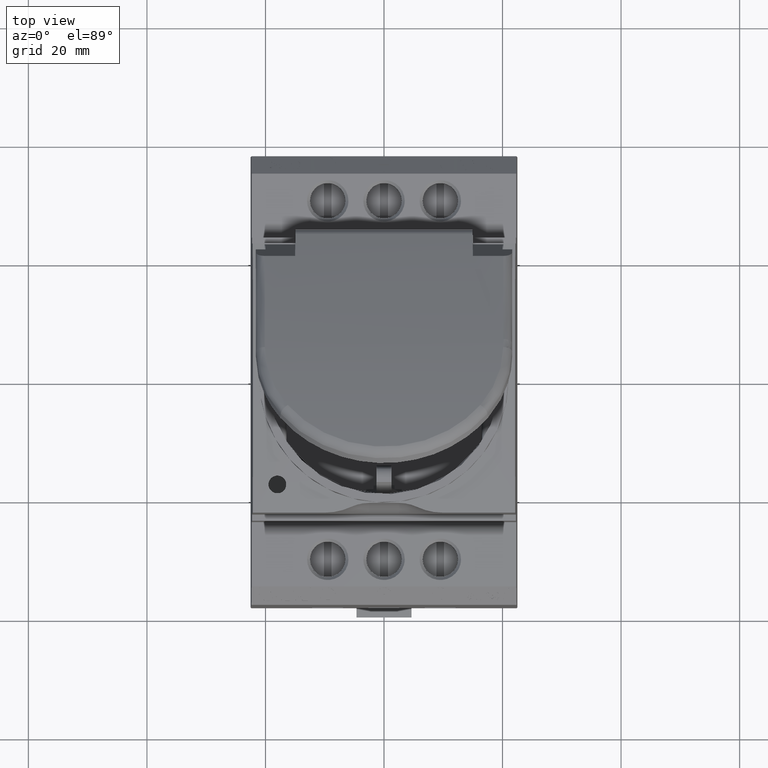
[diagram: clean part render]
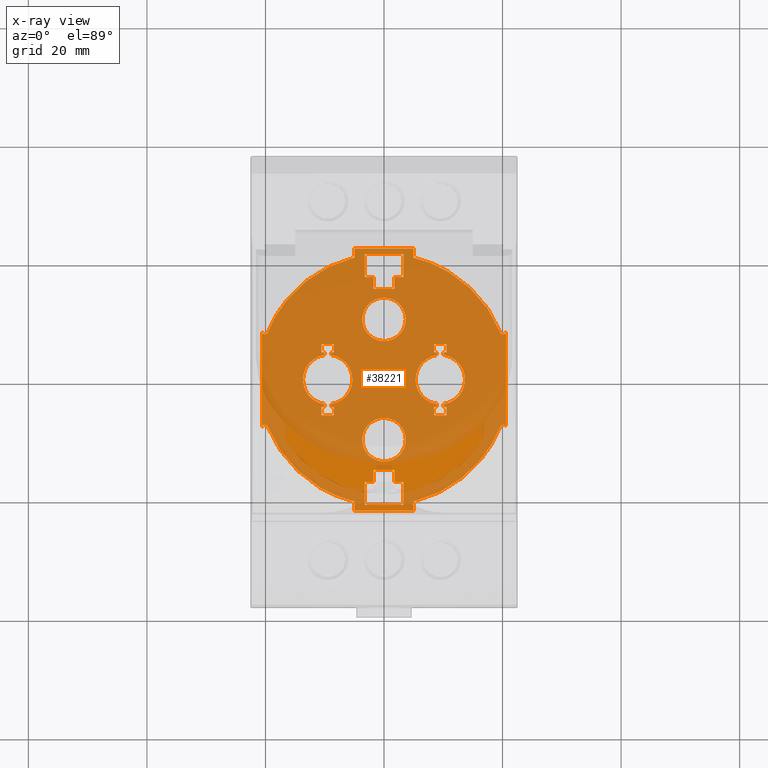
[diagram: x-ray — body ghosted, one internal face saturated and labeled with its STEP entity id]
A machine part, top view, then the same camera in x-ray: the body is ghosted and one INTERNAL B-rep face — a face not visible from any outside direction — is saturated and labeled: STEP entity #38221.
In plain terms, the highlighted planar face has unit normal (0, -0, 1).
Its self-contained STEP definition (entity closure, byte-faithful):
#2516 = VECTOR ( 'NONE', #21633, 1000.000000000000000 ) ;
#2529 = VECTOR ( 'NONE', #7486, 1000.000000000000000 ) ;
#2595 = VECTOR ( 'NONE', #7751, 1000.000000000000000 ) ;
#2603 = VECTOR ( 'NONE', #7646, 1000.000000000000000 ) ;
#2611 = VECTOR ( 'NONE', #7639, 1000.000000000000000 ) ;
#2612 = VECTOR ( 'NONE', #7742, 1000.000000000000000 ) ;
#2615 = VECTOR ( 'NONE', #7672, 1000.000000000000000 ) ;
#2616 = VECTOR ( 'NONE', #7663, 1000.000000000000000 ) ;
#2620 = VECTOR ( 'NONE', #7797, 1000.000000000000000 ) ;
#2632 = VECTOR ( 'NONE', #7795, 1000.000000000000000 ) ;
#2636 = VECTOR ( 'NONE', #7650, 1000.000000000000000 ) ;
#2645 = VECTOR ( 'NONE', #7642, 1000.000000000000000 ) ;
#3032 = VECTOR ( 'NONE', #21630, 1000.000000000000000 ) ;
#3084 = VECTOR ( 'NONE', #16651, 1000.000000000000000 ) ;
#3109 = VECTOR ( 'NONE', #16593, 1000.000000000000000 ) ;
#3132 = VECTOR ( 'NONE', #18255, 1000.000000000000000 ) ;
#3153 = VECTOR ( 'NONE', #18285, 1000.000000000000000 ) ;
#3173 = VECTOR ( 'NONE', #18266, 1000.000000000000000 ) ;
#3183 = VECTOR ( 'NONE', #16738, 1000.000000000000000 ) ;
#3184 = VECTOR ( 'NONE', #16790, 1000.000000000000000 ) ;
#3210 = VECTOR ( 'NONE', #17977, 1000.000000000000000 ) ;
#3212 = VECTOR ( 'NONE', #17941, 1000.000000000000000 ) ;
#3224 = VECTOR ( 'NONE', #18724, 1000.000000000000000 ) ;
#3228 = VECTOR ( 'NONE', #18029, 1000.000000000000000 ) ;
#3229 = VECTOR ( 'NONE', #17957, 1000.000000000000000 ) ;
#3230 = VECTOR ( 'NONE', #17947, 1000.000000000000000 ) ;
#3232 = VECTOR ( 'NONE', #17939, 1000.000000000000000 ) ;
#3254 = VECTOR ( 'NONE', #19126, 1000.000000000000000 ) ;
#3255 = VECTOR ( 'NONE', #18028, 1000.000000000000000 ) ;
#3259 = VECTOR ( 'NONE', #18124, 1000.000000000000000 ) ;
#3261 = VECTOR ( 'NONE', #18053, 1000.000000000000000 ) ;
#3267 = VECTOR ( 'NONE', #18060, 1000.000000000000000 ) ;
#3268 = VECTOR ( 'NONE', #18077, 1000.000000000000000 ) ;
#3271 = VECTOR ( 'NONE', #18087, 1000.000000000000000 ) ;
#3280 = VECTOR ( 'NONE', #18097, 1000.000000000000000 ) ;
#3312 = VECTOR ( 'NONE', #17992, 1000.000000000000000 ) ;
#3327 = VECTOR ( 'NONE', #19906, 1000.000000000000000 ) ;
#7486 = DIRECTION ( 'NONE',  ( -0.0000000000000000000, -1.000000000000000000, -0.0000000000000000000 ) ) ;
#7490 = CARTESIAN_POINT ( 'NONE',  ( 1.750000000000390100, 67.22940901336600900, -1.700000000000000000 ) ) ;
#7500 = LINE ( 'NONE', #7490, #2529 ) ;
#7614 = LINE ( 'NONE', #7659, #2645 ) ;
#7624 = LINE ( 'NONE', #7661, #2636 ) ;
#7639 = DIRECTION ( 'NONE',  ( -1.000000000000000000, -0.0000000000000000000, 0.0000000000000000000 ) ) ;
#7641 = LINE ( 'NONE', #7667, #2611 ) ;
#7642 = DIRECTION ( 'NONE',  ( 0.0000000000000000000, 1.000000000000000000, 0.0000000000000000000 ) ) ;
#7646 = DIRECTION ( 'NONE',  ( 1.000000000000000000, 0.0000000000000000000, -0.0000000000000000000 ) ) ;
#7649 = LINE ( 'NONE', #7676, #2615 ) ;
#7650 = DIRECTION ( 'NONE',  ( -1.000000000000000000, -0.0000000000000000000, 0.0000000000000000000 ) ) ;
#7651 = LINE ( 'NONE', #7662, #2616 ) ;
#7657 = LINE ( 'NONE', #7665, #2603 ) ;
#7659 = CARTESIAN_POINT ( 'NONE',  ( -1.749999999999793500, 67.22940901336600900, -1.700000000000000000 ) ) ;
#7661 = CARTESIAN_POINT ( 'NONE',  ( 97.86427190747768600, 17.29999999999999700, -1.700000000000000000 ) ) ;
#7662 = CARTESIAN_POINT ( 'NONE',  ( 4.999999999999602100, 67.22940901336600900, -1.700000000000000000 ) ) ;
#7663 = DIRECTION ( 'NONE',  ( 0.0000000000000000000, 1.000000000000000000, 0.0000000000000000000 ) ) ;
#7665 = CARTESIAN_POINT ( 'NONE',  ( 97.86427190747768600, -17.29999999999999700, -1.700000000000000000 ) ) ;
#7667 = CARTESIAN_POINT ( 'NONE',  ( 97.86427190747768600, -21.14444229247715200, -1.700000000000000000 ) ) ;
#7672 = DIRECTION ( 'NONE',  ( 1.000000000000000000, 0.0000000000000000000, -0.0000000000000000000 ) ) ;
#7676 = CARTESIAN_POINT ( 'NONE',  ( 97.86427190747768600, -15.29999999999999400, -1.700000000000000000 ) ) ;
#7738 = LINE ( 'NONE', #7787, #2595 ) ;
#7742 = DIRECTION ( 'NONE',  ( -1.000000000000000000, -0.0000000000000000000, 0.0000000000000000000 ) ) ;
#7751 = DIRECTION ( 'NONE',  ( 0.0000000000000000000, 1.000000000000000000, 0.0000000000000000000 ) ) ;
#7777 = CARTESIAN_POINT ( 'NONE',  ( 97.86427190747768600, 15.30000000000000100, -1.700000000000000000 ) ) ;
#7781 = LINE ( 'NONE', #7777, #2612 ) ;
#7787 = CARTESIAN_POINT ( 'NONE',  ( 20.60183536789379800, 67.22940901336600900, -1.700000000000000000 ) ) ;
#7795 = DIRECTION ( 'NONE',  ( 1.000000000000000000, 0.0000000000000000000, -0.0000000000000000000 ) ) ;
#7797 = DIRECTION ( 'NONE',  ( -0.0000000000000000000, -1.000000000000000000, -0.0000000000000000000 ) ) ;
#7816 = LINE ( 'NONE', #7817, #2632 ) ;
#7817 = CARTESIAN_POINT ( 'NONE',  ( 97.86427190747768600, -17.29999999999999700, -1.700000000000000000 ) ) ;
#7834 = CARTESIAN_POINT ( 'NONE',  ( 1.749999999999835000, 67.22940901336600900, -1.700000000000000000 ) ) ;
#7837 = LINE ( 'NONE', #7834, #2620 ) ;
#9032 = CARTESIAN_POINT ( 'NONE',  ( -3.249999999999734000, -17.29999999999999700, -1.699999999999999500 ) ) ;
#9038 = CARTESIAN_POINT ( 'NONE',  ( -3.249999999999683800, -21.14444229247715200, -1.700000000000000200 ) ) ;
#9857 = CARTESIAN_POINT ( 'NONE',  ( 10.00000000000000000, -4.606181784272357600, -1.699999999999999300 ) ) ;
#11333 = CARTESIAN_POINT ( 'NONE',  ( -4.999999999999619000, -22.12026391625575900, -1.699999999999999700 ) ) ;
#11895 = CARTESIAN_POINT ( 'NONE',  ( 3.670326389622258200, -10.14999999999993600, -1.700000000039545000 ) ) ;
#11906 = CARTESIAN_POINT ( 'NONE',  ( -3.670326389622108100, 10.14999999999993600, -1.700000000039545000 ) ) ;
#11911 = CARTESIAN_POINT ( 'NONE',  ( -3.670326389621969600, -10.15000000000006300, -1.700000000039545000 ) ) ;
#12003 = CARTESIAN_POINT ( 'NONE',  ( 3.670326389621842100, 10.15000000000006300, -1.700000000039545000 ) ) ;
#12928 = CARTESIAN_POINT ( 'NONE',  ( -4.999999999999632300, -20.58674161299978800, -1.699999999999942900 ) ) ;
#12940 = CARTESIAN_POINT ( 'NONE',  ( -1.749999999999816100, -15.29999999999999700, -1.699999999999998600 ) ) ;
#12976 = CARTESIAN_POINT ( 'NONE',  ( 1.749999999999834600, -15.29999999999997400, -1.699999999999974600 ) ) ;
#12983 = CARTESIAN_POINT ( 'NONE',  ( -1.749999999999791300, -17.29999999999999000, -1.699999999999992900 ) ) ;
#15223 = LINE ( 'NONE', #9857, #3153 ) ;
#15679 = EDGE_LOOP ( 'NONE', ( #27462, #27479 ) ) ;
#15765 = EDGE_LOOP ( 'NONE', ( #27357, #27411, #27402, #27390, #27417, #27392, #27394, #27406 ) ) ;
#15775 = EDGE_LOOP ( 'NONE', ( #27443, #27438 ) ) ;
#15788 = EDGE_LOOP ( 'NONE', ( #27470, #27476, #27422, #27445, #27484, #27472, #27483, #27459, #27446, #27478, #27463, #27433, #27421, #27454, #27468, #27373, #27372 ) ) ;
#15789 = EDGE_LOOP ( 'NONE', ( #27407, #27395, #27348, #27376, #27358, #27351, #27359, #27296, #27382, #27413, #27467, #27460, #27474, #27449, #27461, #27431 ) ) ;
#15796 = EDGE_LOOP ( 'NONE', ( #27367, #27369, #27410, #27397, #27368, #27327, #27400, #27384 ) ) ;
#15800 = EDGE_LOOP ( 'NONE', ( #27464, #27477, #27473, #27437, #27451, #27379, #27456, #27457, #27480, #27398, #27435, #27434, #27377, #27466, #27455, #27440, #27432 ) ) ;
#16589 = LINE ( 'NONE', #16607, #3109 ) ;
#16593 = DIRECTION ( 'NONE',  ( 1.000000000000000000, -0.0000000000000000000, 0.0000000000000000000 ) ) ;
#16607 = CARTESIAN_POINT ( 'NONE',  ( 8.500000000000000000, -4.606181784272357600, -1.699999999999999300 ) ) ;
#16625 = CARTESIAN_POINT ( 'NONE',  ( 8.500000000000000000, 4.606181784272357600, -1.700000000000000200 ) ) ;
#16651 = DIRECTION ( 'NONE',  ( -1.000000000000000000, -1.214213960808279900E-014, -1.059628470566745700E-016 ) ) ;
#16671 = LINE ( 'NONE', #16625, #3084 ) ;
#16738 = DIRECTION ( 'NONE',  ( 1.000000000000000000, -0.0000000000000000000, 0.0000000000000000000 ) ) ;
#16749 = LINE ( 'NONE', #16827, #3184 ) ;
#16765 = LINE ( 'NONE', #16773, #3183 ) ;
#16773 = CARTESIAN_POINT ( 'NONE',  ( -8.500000000000000000, -4.606181784272357600, -1.699999999999999300 ) ) ;
#16790 = DIRECTION ( 'NONE',  ( -1.000000000000000000, 1.214213960808279900E-014, 1.059628470566745700E-016 ) ) ;
#16827 = CARTESIAN_POINT ( 'NONE',  ( -8.500000000000000000, 4.606181784272357600, -1.699999999999999300 ) ) ;
#17932 = LINE ( 'NONE', #17975, #3232 ) ;
#17939 = DIRECTION ( 'NONE',  ( -0.0000000000000000000, -1.000000000000000000, -0.0000000000000000000 ) ) ;
#17940 = LINE ( 'NONE', #17944, #3210 ) ;
#17941 = DIRECTION ( 'NONE',  ( -0.0000000000000000000, -1.000000000000000000, -0.0000000000000000000 ) ) ;
#17943 = CARTESIAN_POINT ( 'NONE',  ( 10.05672464063993300, 3.658030960244140300, -1.699999999999999300 ) ) ;
#17944 = CARTESIAN_POINT ( 'NONE',  ( -8.443275359360068700, -5.962906424912289600, -1.699999999999999300 ) ) ;
#17947 = DIRECTION ( 'NONE',  ( 0.0000000000000000000, 1.000000000000000000, 0.0000000000000000000 ) ) ;
#17957 = DIRECTION ( 'NONE',  ( -0.0000000000000000000, -1.000000000000000000, -0.0000000000000000000 ) ) ;
#17959 = CARTESIAN_POINT ( 'NONE',  ( 10.05672464063993300, -3.658030960244145200, -1.699999999999999300 ) ) ;
#17961 = CARTESIAN_POINT ( 'NONE',  ( -10.05672464063993300, 3.658030960244140300, -1.699999999999999300 ) ) ;
#17962 = LINE ( 'NONE', #17959, #3212 ) ;
#17972 = LINE ( 'NONE', #17943, #3229 ) ;
#17975 = CARTESIAN_POINT ( 'NONE',  ( 10.55672464063993300, -5.962906424912289600, -1.699999999999999300 ) ) ;
#17977 = DIRECTION ( 'NONE',  ( -0.0000000000000000000, -1.000000000000000000, -0.0000000000000000000 ) ) ;
#17989 = CARTESIAN_POINT ( 'NONE',  ( -8.943275359360068700, -3.658030960244145200, -1.699999999999999300 ) ) ;
#17992 = DIRECTION ( 'NONE',  ( -0.0000000000000000000, -1.000000000000000000, -0.0000000000000000000 ) ) ;
#17999 = LINE ( 'NONE', #18024, #3228 ) ;
#18009 = LINE ( 'NONE', #18027, #3255 ) ;
#18013 = LINE ( 'NONE', #17989, #3312 ) ;
#18024 = CARTESIAN_POINT ( 'NONE',  ( 8.443275359360068700, -5.962906424912289600, -1.699999999999999300 ) ) ;
#18027 = CARTESIAN_POINT ( 'NONE',  ( 10.55672464063993300, 5.962906424912289600, -1.699999999999998400 ) ) ;
#18028 = DIRECTION ( 'NONE',  ( 6.671505279165357800E-015, -1.000000000000000000, -5.822134453662552400E-017 ) ) ;
#18029 = DIRECTION ( 'NONE',  ( 0.0000000000000000000, 1.000000000000000000, 0.0000000000000000000 ) ) ;
#18037 = LINE ( 'NONE', #18050, #3261 ) ;
#18038 = CARTESIAN_POINT ( 'NONE',  ( -10.05672464063993300, -3.658030960244145200, -1.699999999999999300 ) ) ;
#18039 = CARTESIAN_POINT ( 'NONE',  ( 20.56157711105065300, -7.905403129009802600, -1.700000000000000000 ) ) ;
#18047 = CARTESIAN_POINT ( 'NONE',  ( 20.60158550510011800, -8.017236373457773600, -1.700000000000000000 ) ) ;
#18050 = CARTESIAN_POINT ( 'NONE',  ( 8.943275359360068700, -3.658030960244145200, -1.699999999999999300 ) ) ;
#18053 = DIRECTION ( 'NONE',  ( 0.0000000000000000000, 1.000000000000000000, 0.0000000000000000000 ) ) ;
#18055 = CARTESIAN_POINT ( 'NONE',  ( 20.60183536789413600, -8.134112307518636300, -1.700000000039066000 ) ) ;
#18056 = CARTESIAN_POINT ( 'NONE',  ( 20.08329241562697100, -7.620922299232858200, -1.700000000000000200 ) ) ;
#18057 = CARTESIAN_POINT ( 'NONE',  ( 19.63837978708201200, -7.946569678574563000, -1.700000000015949900 ) ) ;
#18059 = CARTESIAN_POINT ( 'NONE',  ( 20.31153096794136900, -7.665078483786785100, -1.700000000000000200 ) ) ;
#18060 = DIRECTION ( 'NONE',  ( 0.0000000000000000000, 1.000000000000000000, 0.0000000000000000000 ) ) ;
#18061 = CARTESIAN_POINT ( 'NONE',  ( 19.76113647510555500, -7.750156011754126200, -1.700000000000000200 ) ) ;
#18069 = LINE ( 'NONE', #18086, #3268 ) ;
#18075 = LINE ( 'NONE', #18038, #3267 ) ;
#18077 = DIRECTION ( 'NONE',  ( 0.0000000000000000000, 1.000000000000000000, 0.0000000000000000000 ) ) ;
#18079 = CARTESIAN_POINT ( 'NONE',  ( 19.96572037165572800, -7.638728647078325600, -1.700000000000000600 ) ) ;
#18082 = CARTESIAN_POINT ( 'NONE',  ( 19.68222344109218700, -7.838875848079610800, -1.700000000000000200 ) ) ;
#18084 = CARTESIAN_POINT ( 'NONE',  ( 20.41389711968620800, -7.726421503558129600, -1.699999999999999500 ) ) ;
#18086 = CARTESIAN_POINT ( 'NONE',  ( 8.943275359360068700, 3.658030960244140300, -1.699999999999999300 ) ) ;
#18087 = DIRECTION ( 'NONE',  ( -0.0000000000000000000, -1.000000000000000000, -0.0000000000000000000 ) ) ;
#18097 = DIRECTION ( 'NONE',  ( -6.671505279165228400E-015, -1.000000000000000000, 5.822134453662445200E-017 ) ) ;
#18106 = LINE ( 'NONE', #18122, #3259 ) ;
#18112 = CARTESIAN_POINT ( 'NONE',  ( -8.443275359360068700, 5.962906424912289600, -1.699999999999999300 ) ) ;
#18122 = CARTESIAN_POINT ( 'NONE',  ( 8.443275359360068700, 5.962906424912289600, -1.700000000000000200 ) ) ;
#18124 = DIRECTION ( 'NONE',  ( -6.671505279165228400E-015, 1.000000000000000000, -5.822134453662445200E-017 ) ) ;
#18129 = LINE ( 'NONE', #18130, #3271 ) ;
#18130 = CARTESIAN_POINT ( 'NONE',  ( -8.943275359360068700, 3.658030960244140300, -1.699999999999999300 ) ) ;
#18131 = LINE ( 'NONE', #18112, #3280 ) ;
#18139 = CARTESIAN_POINT ( 'NONE',  ( 19.63837978676303900, 7.946569679361999800, -1.700000000053191000 ) ) ;
#18145 = CARTESIAN_POINT ( 'NONE',  ( 19.68249285398110600, 7.838214085155564200, -1.700000000000000200 ) ) ;
#18192 = CARTESIAN_POINT ( 'NONE',  ( 19.76110102941321900, 7.749893260005299200, -1.699999999999999700 ) ) ;
#18197 = CARTESIAN_POINT ( 'NONE',  ( 20.56144579033481500, 7.905634066775871100, -1.700000000000000000 ) ) ;
#18198 = CARTESIAN_POINT ( 'NONE',  ( 20.60158703104914200, 8.017950151919720300, -1.700000000000000400 ) ) ;
#18206 = CARTESIAN_POINT ( 'NONE',  ( 20.31136818800919700, 7.665300553510306300, -1.700000000000000200 ) ) ;
#18213 = CARTESIAN_POINT ( 'NONE',  ( 19.96575581734858700, 7.638991398825916200, -1.699999999999999700 ) ) ;
#18217 = CARTESIAN_POINT ( 'NONE',  ( 20.08345519555958700, 7.620700229508088300, -1.700000000000000200 ) ) ;
#18223 = CARTESIAN_POINT ( 'NONE',  ( 20.60183536789407200, 8.134112306646439800, -1.699999999999997700 ) ) ;
#18238 = CARTESIAN_POINT ( 'NONE',  ( 97.86427190747768600, -6.019631065552213800, -1.700000000000000000 ) ) ;
#18240 = DIRECTION ( 'NONE',  ( -1.000000000000000000, -0.0000000000000000000, 0.0000000000000000000 ) ) ;
#18247 = CARTESIAN_POINT ( 'NONE',  ( 20.41402844040244300, 7.726190565790743900, -1.700000000000000000 ) ) ;
#18252 = CARTESIAN_POINT ( 'NONE',  ( -10.00000000000000000, 4.606181784272378900, -1.699999999999999300 ) ) ;
#18255 = DIRECTION ( 'NONE',  ( 1.000000000000000000, -3.469182745166054000E-015, 3.027509915904586700E-017 ) ) ;
#18266 = DIRECTION ( 'NONE',  ( -1.000000000000000000, 1.214213960807857800E-014, 1.059628470566377400E-016 ) ) ;
#18276 = CARTESIAN_POINT ( 'NONE',  ( -10.00000000000000000, -4.606181784272357600, -1.699999999999999300 ) ) ;
#18284 = LINE ( 'NONE', #18276, #3132 ) ;
#18285 = DIRECTION ( 'NONE',  ( 1.000000000000000000, 3.469182745166054000E-015, -3.027509915904586700E-017 ) ) ;
#18303 = LINE ( 'NONE', #18252, #3173 ) ;
#18721 = CARTESIAN_POINT ( 'NONE',  ( 10.00000000000000000, 4.606181784272378900, -1.700000000000000200 ) ) ;
#18724 = DIRECTION ( 'NONE',  ( -1.000000000000000000, -1.214213960807857800E-014, -1.059628470566377400E-016 ) ) ;
#18744 = LINE ( 'NONE', #18721, #3224 ) ;
#19085 = LINE ( 'NONE', #17961, #3230 ) ;
#19098 = CARTESIAN_POINT ( 'NONE',  ( -10.55672464063993300, -5.962906424912289600, -1.699999999999999300 ) ) ;
#19124 = LINE ( 'NONE', #19098, #3254 ) ;
#19126 = DIRECTION ( 'NONE',  ( 0.0000000000000000000, 1.000000000000000000, 0.0000000000000000000 ) ) ;
#19844 = LINE ( 'NONE', #19852, #3327 ) ;
#19852 = CARTESIAN_POINT ( 'NONE',  ( -10.55672464063993300, 5.962906424912289600, -1.699999999999998400 ) ) ;
#19906 = DIRECTION ( 'NONE',  ( 6.671505279165357800E-015, 1.000000000000000000, 5.822134453662552400E-017 ) ) ;
#20528 = CARTESIAN_POINT ( 'NONE',  ( 12.31084464398069800, 3.120919223825987300, -1.700000000028012200 ) ) ;
#20629 = DIRECTION ( 'NONE',  ( 0.0000000000000000000, 1.000000000000000000, 0.0000000000000000000 ) ) ;
#20639 = CARTESIAN_POINT ( 'NONE',  ( 12.96822306652814300, 2.369053223345553700, -1.700000000028012400 ) ) ;
#20641 = CARTESIAN_POINT ( 'NONE',  ( 13.22858258153075000, 1.933560536147617800, -1.700000000028012400 ) ) ;
#20646 = CARTESIAN_POINT ( 'NONE',  ( -3.250000000000377500, 67.22940901336600900, -1.700000000000000000 ) ) ;
#20656 = LINE ( 'NONE', #20646, #22133 ) ;
#20786 = CARTESIAN_POINT ( 'NONE',  ( 13.57968266545465500, 0.9985858818504864700, -1.700000000028012900 ) ) ;
#20846 = CARTESIAN_POINT ( 'NONE',  ( 13.67032638962052500, 0.4993618109919066800, -1.700000000028012700 ) ) ;
#20930 = CARTESIAN_POINT ( 'NONE',  ( 13.67032638962111900, -2.363284417563159700E-013, -1.700000000016807400 ) ) ;
#20984 = CARTESIAN_POINT ( 'NONE',  ( 2.255587043980349400, -13.08503831456041200, -1.700000000028012700 ) ) ;
#20985 = CARTESIAN_POINT ( 'NONE',  ( -0.4804446009129258500, -13.82032638962289200, -1.700000000028012700 ) ) ;
#20987 = CARTESIAN_POINT ( 'NONE',  ( 18.19810149624344900, -10.97471010029721200, -1.699999999999840500 ) ) ;
#20989 = CARTESIAN_POINT ( 'NONE',  ( 12.57901736604725700, -17.12844073340667700, -1.699999999999840300 ) ) ;
#20993 = CARTESIAN_POINT ( 'NONE',  ( 0.4804446009134093500, -13.82032638962288100, -1.700000000028012400 ) ) ;
#20995 = CARTESIAN_POINT ( 'NONE',  ( 3.574797617947560000, -11.11070016739176600, -1.700000000028012700 ) ) ;
#20996 = CARTESIAN_POINT ( 'NONE',  ( 16.24904242191953300, -13.69612281719915500, -1.699999999999840700 ) ) ;
#21000 = CARTESIAN_POINT ( 'NONE',  ( 6.626405386707226300, -20.19172878938703200, -1.699999999999840700 ) ) ;
#21001 = CARTESIAN_POINT ( 'NONE',  ( 0.9607001673920686500, -13.72479761794734400, -1.700000000028012700 ) ) ;
#21002 = CARTESIAN_POINT ( 'NONE',  ( -2.255587043979889300, -13.08503831456048700, -1.700000000028012400 ) ) ;
#21003 = CARTESIAN_POINT ( 'NONE',  ( 3.670326389622258200, -10.14999999999993600, -1.700000000039545000 ) ) ;
#21004 = CARTESIAN_POINT ( 'NONE',  ( -3.670326389621969600, -10.15000000000006300, -1.700000000039545000 ) ) ;
#21005 = CARTESIAN_POINT ( 'NONE',  ( -3.670326389622702300, -10.63044460091322700, -1.700000000028012900 ) ) ;
#21006 = CARTESIAN_POINT ( 'NONE',  ( 19.01058040008256000, -9.498052047927529900, -1.699999999999840300 ) ) ;
#21008 = CARTESIAN_POINT ( 'NONE',  ( -1.848446033970048400, -13.35708124006994200, -1.700000000028012700 ) ) ;
#21010 = CARTESIAN_POINT ( 'NONE',  ( -3.207081240069696200, -11.99844603397033900, -1.700000000028012400 ) ) ;
#21013 = CARTESIAN_POINT ( 'NONE',  ( 1.848446033970519800, -13.35708124006987800, -1.700000000028012400 ) ) ;
#21014 = CARTESIAN_POINT ( 'NONE',  ( 19.63837978708201200, -7.946569678574563000, -1.700000000015949900 ) ) ;
#21021 = CARTESIAN_POINT ( 'NONE',  ( 11.18208108085150300, -18.07142004808715200, -1.699999999999839900 ) ) ;
#21025 = CARTESIAN_POINT ( 'NONE',  ( 3.670326389623079300, -10.63044460091310700, -1.700000000028012200 ) ) ;
#21028 = CARTESIAN_POINT ( 'NONE',  ( -2.935038314560231700, -12.40558704398016800, -1.700000000028012700 ) ) ;
#21029 = CARTESIAN_POINT ( 'NONE',  ( 2.935038314560668700, -12.40558704398006800, -1.700000000028012400 ) ) ;
#21030 = CARTESIAN_POINT ( 'NONE',  ( 4.999999999999629600, -20.58674161299979500, -1.699999999999968200 ) ) ;
#21031 = CARTESIAN_POINT ( 'NONE',  ( 15.11256447750095700, -14.94073474654175000, -1.699999999999840500 ) ) ;
#21032 = CARTESIAN_POINT ( 'NONE',  ( -3.574797617947166100, -11.11070016739189400, -1.700000000028013100 ) ) ;
#21033 = CARTESIAN_POINT ( 'NONE',  ( 3.207081240070120700, -11.99844603397022500, -1.700000000028012200 ) ) ;
#21034 = CARTESIAN_POINT ( 'NONE',  ( -0.9607001673915848100, -13.72479761794737600, -1.700000000028012400 ) ) ;
#21036 = CARTESIAN_POINT ( 'NONE',  ( 8.205697037099806600, -19.60310424367720100, -1.699999999999840500 ) ) ;
#21043 = CARTESIAN_POINT ( 'NONE',  ( 8.448383204530809800, -4.066335762050529800, -1.700000000028012200 ) ) ;
#21048 = CARTESIAN_POINT ( 'NONE',  ( 7.965728191309603200, -3.909858620372583800, -1.700000000028012400 ) ) ;
#21049 = CARTESIAN_POINT ( 'NONE',  ( 6.689155356019312200, -3.120919223826327500, -1.700000000028012200 ) ) ;
#21050 = CARTESIAN_POINT ( 'NONE',  ( 5.771417418469268600, -1.933560536147983300, -1.700000000028012200 ) ) ;
#21051 = CARTESIAN_POINT ( 'NONE',  ( 5.420317334545361900, -0.9985858818508704900, -1.700000000028012200 ) ) ;
#21053 = CARTESIAN_POINT ( 'NONE',  ( 7.085992937339893800, -3.437085148155464100, -1.700000000028012000 ) ) ;
#21055 = CARTESIAN_POINT ( 'NONE',  ( 5.329673610379486200, -0.4993618109922995900, -1.700000000028012200 ) ) ;
#21071 = CARTESIAN_POINT ( 'NONE',  ( 6.031776933471874700, -2.369053223345908500, -1.700000000028012200 ) ) ;
#21087 = CARTESIAN_POINT ( 'NONE',  ( 8.943275359360191200, -4.132998895532898200, -1.700000000016807400 ) ) ;
#21098 = LINE ( 'NONE', #21118, #22204 ) ;
#21100 = CARTESIAN_POINT ( 'NONE',  ( 7.965728191309603200, 3.909858620372254700, -1.700000000028012700 ) ) ;
#21103 = DIRECTION ( 'NONE',  ( -1.000000000000000000, -0.0000000000000000000, 0.0000000000000000000 ) ) ;
#21109 = CARTESIAN_POINT ( 'NONE',  ( 5.771417418469269500, 1.933560536147654200, -1.700000000028012900 ) ) ;
#21112 = CARTESIAN_POINT ( 'NONE',  ( 5.329673610379486200, 0.4993618109919709700, -1.700000000028012400 ) ) ;
#21115 = CARTESIAN_POINT ( 'NONE',  ( 5.420317334545361000, 0.9985858818505422000, -1.700000000028012400 ) ) ;
#21116 = CARTESIAN_POINT ( 'NONE',  ( 8.943275359360193000, 4.132998895532570500, -1.700000000016807400 ) ) ;
#21117 = CARTESIAN_POINT ( 'NONE',  ( -8.448383204530815100, 4.066335762050200300, -1.700000000028012700 ) ) ;
#21118 = CARTESIAN_POINT ( 'NONE',  ( 97.86427190747768600, 6.019631065552220900, -1.700000000000000000 ) ) ;
#21119 = CARTESIAN_POINT ( 'NONE',  ( 8.448383204530815100, 4.066335762050202100, -1.700000000028012700 ) ) ;
#21121 = CARTESIAN_POINT ( 'NONE',  ( 97.86427190747768600, 17.29999999999999700, -1.700000000000000000 ) ) ;
#21124 = CARTESIAN_POINT ( 'NONE',  ( 7.085992937339894700, 3.437085148155135000, -1.700000000028012400 ) ) ;
#21126 = CARTESIAN_POINT ( 'NONE',  ( 6.031776933471878300, 2.369053223345581200, -1.700000000028012400 ) ) ;
#21129 = CARTESIAN_POINT ( 'NONE',  ( 97.86427190747768600, -6.019631065552213800, -1.700000000000000000 ) ) ;
#21130 = CARTESIAN_POINT ( 'NONE',  ( 6.689155356019314000, 3.120919223825998000, -1.700000000028012400 ) ) ;
#21132 = LINE ( 'NONE', #21121, #22199 ) ;
#21133 = DIRECTION ( 'NONE',  ( 1.000000000000000000, 0.0000000000000000000, -0.0000000000000000000 ) ) ;
#21134 = CARTESIAN_POINT ( 'NONE',  ( -8.943275359360193000, 4.132998895532570500, -1.700000000016807400 ) ) ;
#21136 = DIRECTION ( 'NONE',  ( -1.000000000000000000, -0.0000000000000000000, 0.0000000000000000000 ) ) ;
#21140 = LINE ( 'NONE', #21129, #22232 ) ;
#21149 = DIRECTION ( 'NONE',  ( 1.724398567562021500E-014, 1.000000000000000000, -3.009948895892055600E-016 ) ) ;
#21150 = CARTESIAN_POINT ( 'NONE',  ( 13.67032638962049900, -0.4993618109923675900, -1.700000000028012200 ) ) ;
#21151 = CARTESIAN_POINT ( 'NONE',  ( 8.205697037100485100, 19.60310424367692100, -1.699999999999840500 ) ) ;
#21152 = CARTESIAN_POINT ( 'NONE',  ( 13.22858258153070200, -1.933560536148033700, -1.700000000028012200 ) ) ;
#21153 = CARTESIAN_POINT ( 'NONE',  ( 19.01058040008289400, 9.498052047926872600, -1.699999999999840700 ) ) ;
#21155 = CARTESIAN_POINT ( 'NONE',  ( 12.96822306652809300, -2.369053223345953400, -1.700000000028012400 ) ) ;
#21156 = CARTESIAN_POINT ( 'NONE',  ( 12.31084464398065300, -3.120919223826357700, -1.700000000028012700 ) ) ;
#21157 = CARTESIAN_POINT ( 'NONE',  ( -7.965728191309603200, 3.909858620372253800, -1.700000000028012700 ) ) ;
#21160 = CARTESIAN_POINT ( 'NONE',  ( -6.689155356019313100, 3.120919223825998800, -1.700000000028012400 ) ) ;
#21161 = CARTESIAN_POINT ( 'NONE',  ( -5.420317334545361900, 0.9985858818505430900, -1.700000000028013100 ) ) ;
#21162 = CARTESIAN_POINT ( 'NONE',  ( -6.031776933471880000, -2.369053223345912100, -1.700000000028012700 ) ) ;
#21165 = CARTESIAN_POINT ( 'NONE',  ( -7.085992937339895500, 3.437085148155135000, -1.700000000028012400 ) ) ;
#21166 = CARTESIAN_POINT ( 'NONE',  ( 97.86427190747768600, 21.14444229247704900, -1.700000000000000000 ) ) ;
#21167 = LINE ( 'NONE', #21250, #22192 ) ;
#21168 = CARTESIAN_POINT ( 'NONE',  ( 13.57968266545462100, -0.9985858818509348900, -1.700000000028012700 ) ) ;
#21169 = CARTESIAN_POINT ( 'NONE',  ( 11.18208108085213200, 18.07142004808677200, -1.699999999999840700 ) ) ;
#21170 = CARTESIAN_POINT ( 'NONE',  ( 11.91400706266007100, -3.437085148155486300, -1.700000000028012400 ) ) ;
#21171 = CARTESIAN_POINT ( 'NONE',  ( -7.965728191309605000, -3.909858620372584200, -1.700000000028012700 ) ) ;
#21172 = CARTESIAN_POINT ( 'NONE',  ( -6.689155356019315800, -3.120919223826329200, -1.700000000028012400 ) ) ;
#21175 = CARTESIAN_POINT ( 'NONE',  ( 16.24904242192000600, 13.69612281719857800, -1.699999999999839900 ) ) ;
#21176 = CARTESIAN_POINT ( 'NONE',  ( 5.000000000000370400, 22.16477094198845400, -1.700000000000000400 ) ) ;
#21177 = CARTESIAN_POINT ( 'NONE',  ( -5.771417418469268600, 1.933560536147654700, -1.700000000028012000 ) ) ;
#21178 = CARTESIAN_POINT ( 'NONE',  ( -8.943275359360193000, -4.132998895532898200, -1.700000000016807400 ) ) ;
#21180 = CARTESIAN_POINT ( 'NONE',  ( 18.19810149624384000, 10.97471010029657100, -1.699999999999840500 ) ) ;
#21181 = CARTESIAN_POINT ( 'NONE',  ( -8.448383204530815100, -4.066335762050531600, -1.700000000028012400 ) ) ;
#21182 = CARTESIAN_POINT ( 'NONE',  ( -5.329673610379487100, 0.4993618109919700200, -1.700000000028012400 ) ) ;
#21183 = CARTESIAN_POINT ( 'NONE',  ( -7.085992937339896400, -3.437085148155465400, -1.700000000028012700 ) ) ;
#21188 = CARTESIAN_POINT ( 'NONE',  ( 19.63837978676303900, 7.946569679361999800, -1.700000000053191000 ) ) ;
#21189 = CARTESIAN_POINT ( 'NONE',  ( -5.771417418469270400, -1.933560536147985300, -1.700000000028012700 ) ) ;
#21190 = LINE ( 'NONE', #21166, #22223 ) ;
#21191 = CARTESIAN_POINT ( 'NONE',  ( -5.420317334545361900, -0.9985858818508732700, -1.700000000028012400 ) ) ;
#21193 = CARTESIAN_POINT ( 'NONE',  ( -6.031776933471875600, 2.369053223345579900, -1.700000000028012400 ) ) ;
#21196 = CARTESIAN_POINT ( 'NONE',  ( -5.329673610379485300, -0.4993618109923004800, -1.700000000028013100 ) ) ;
#21198 = DIRECTION ( 'NONE',  ( 1.000000000000000000, 0.0000000000000000000, -0.0000000000000000000 ) ) ;
#21200 = CARTESIAN_POINT ( 'NONE',  ( 15.11256447750147000, 14.94073474654122100, -1.699999999999840300 ) ) ;
#21201 = CARTESIAN_POINT ( 'NONE',  ( 12.57901736604785400, 17.12844073340624400, -1.699999999999840500 ) ) ;
#21202 = CARTESIAN_POINT ( 'NONE',  ( 6.626405386707939500, 20.19172878938679400, -1.699999999999840300 ) ) ;
#21203 = CARTESIAN_POINT ( 'NONE',  ( 5.000000000000349100, 20.58674161299960700, -1.699999999999904000 ) ) ;
#21204 = LINE ( 'NONE', #21176, #22209 ) ;
#21205 = CARTESIAN_POINT ( 'NONE',  ( 13.67032638962111900, -2.363284417563159700E-013, -1.700000000016807400 ) ) ;
#21224 = DIRECTION ( 'NONE',  ( 0.0000000000000000000, 1.000000000000000000, 0.0000000000000000000 ) ) ;
#21241 = LINE ( 'NONE', #18238, #22206 ) ;
#21242 = CARTESIAN_POINT ( 'NONE',  ( 11.03427180869036500, -3.909858620372594000, -1.700000000028013100 ) ) ;
#21250 = CARTESIAN_POINT ( 'NONE',  ( -1.750000000000362400, 67.22940901336600900, -1.700000000000000000 ) ) ;
#21253 = CARTESIAN_POINT ( 'NONE',  ( 10.05672464063979500, -4.132998895532900000, -1.700000000016807400 ) ) ;
#21254 = CARTESIAN_POINT ( 'NONE',  ( 10.55161679546916200, -4.066335762050536000, -1.700000000028012400 ) ) ;
#21273 = LINE ( 'NONE', #21278, #22187 ) ;
#21275 = CARTESIAN_POINT ( 'NONE',  ( -10.05672464063979600, -4.132998895532900000, -1.700000000016807400 ) ) ;
#21278 = CARTESIAN_POINT ( 'NONE',  ( 97.86427190747768600, 6.019631065552220900, -1.700000000000000000 ) ) ;
#21311 = CARTESIAN_POINT ( 'NONE',  ( -10.55161679546916500, -4.066335762050535200, -1.700000000028012200 ) ) ;
#21318 = CARTESIAN_POINT ( 'NONE',  ( 10.05672464063979600, 4.132998895532572300, -1.700000000016807400 ) ) ;
#21319 = CARTESIAN_POINT ( 'NONE',  ( 10.55161679546917400, 4.066335762050204700, -1.700000000028012200 ) ) ;
#21321 = CARTESIAN_POINT ( 'NONE',  ( -5.000000000000342800, 20.58674161299961000, -1.699999999999904000 ) ) ;
#21323 = CARTESIAN_POINT ( 'NONE',  ( -6.626405386707921800, 20.19172878938679700, -1.699999999999841000 ) ) ;
#21324 = CARTESIAN_POINT ( 'NONE',  ( -5.000000000000370400, 22.16477094198845400, -1.700000000000000000 ) ) ;
#21327 = CARTESIAN_POINT ( 'NONE',  ( -11.18208108085212000, 18.07142004808677500, -1.699999999999840700 ) ) ;
#21328 = CARTESIAN_POINT ( 'NONE',  ( -12.57901736604784700, 17.12844073340625100, -1.699999999999840500 ) ) ;
#21331 = CARTESIAN_POINT ( 'NONE',  ( -15.11256447750146300, 14.94073474654122800, -1.699999999999840500 ) ) ;
#21332 = CARTESIAN_POINT ( 'NONE',  ( -13.22858258153070400, -1.933560536148032100, -1.700000000028012400 ) ) ;
#21333 = CARTESIAN_POINT ( 'NONE',  ( -12.96822306652809500, -2.369053223345948500, -1.700000000028012200 ) ) ;
#21334 = CARTESIAN_POINT ( 'NONE',  ( -16.24904242191999500, 13.69612281719858700, -1.699999999999840300 ) ) ;
#21335 = CARTESIAN_POINT ( 'NONE',  ( -18.19810149624382900, 10.97471010029657600, -1.699999999999840500 ) ) ;
#21336 = CARTESIAN_POINT ( 'NONE',  ( -19.01058040008288700, 9.498052047926876200, -1.699999999999840100 ) ) ;
#21339 = CARTESIAN_POINT ( 'NONE',  ( -19.63837978708229700, 7.946569678573887100, -1.700000000015978100 ) ) ;
#21345 = DIRECTION ( 'NONE',  ( 1.000000000000000000, 0.0000000000000000000, -0.0000000000000000000 ) ) ;
#21347 = CARTESIAN_POINT ( 'NONE',  ( -11.91400706266007600, -3.437085148155484500, -1.700000000028012400 ) ) ;
#21352 = LINE ( 'NONE', #21324, #22230 ) ;
#21355 = CARTESIAN_POINT ( 'NONE',  ( -13.57968266545462300, -0.9985858818509330000, -1.700000000028012400 ) ) ;
#21356 = CARTESIAN_POINT ( 'NONE',  ( -12.31084464398065300, -3.120919223826354600, -1.700000000028012200 ) ) ;
#21362 = DIRECTION ( 'NONE',  ( 1.724398567562021500E-014, -1.000000000000000000, 3.009948895892055600E-016 ) ) ;
#21363 = CARTESIAN_POINT ( 'NONE',  ( -8.205697037100470900, 19.60310424367692400, -1.699999999999840500 ) ) ;
#21365 = CARTESIAN_POINT ( 'NONE',  ( -13.67032638962111900, -2.355494682169233800E-013, -1.700000000016807400 ) ) ;
#21366 = CARTESIAN_POINT ( 'NONE',  ( -13.67032638962050200, -0.4993618109923651000, -1.700000000028011800 ) ) ;
#21369 = CARTESIAN_POINT ( 'NONE',  ( -11.03427180869037400, -3.909858620372592200, -1.700000000028012700 ) ) ;
#21601 = CARTESIAN_POINT ( 'NONE',  ( 3.250000000000405500, 67.22940901336600900, -1.700000000000000000 ) ) ;
#21606 = CARTESIAN_POINT ( 'NONE',  ( 11.03427180869039100, 3.909858620372255600, -1.700000000028012200 ) ) ;
#21612 = CARTESIAN_POINT ( 'NONE',  ( 11.91400706266011700, 3.437085148155130100, -1.700000000028012700 ) ) ;
#21614 = LINE ( 'NONE', #21620, #3032 ) ;
#21620 = CARTESIAN_POINT ( 'NONE',  ( 3.249999999999780600, 67.22940901336600900, -1.700000000000000000 ) ) ;
#21630 = DIRECTION ( 'NONE',  ( -0.0000000000000000000, -1.000000000000000000, -0.0000000000000000000 ) ) ;
#21633 = DIRECTION ( 'NONE',  ( -0.0000000000000000000, -1.000000000000000000, -0.0000000000000000000 ) ) ;
#21643 = LINE ( 'NONE', #21601, #2516 ) ;
#21675 = CARTESIAN_POINT ( 'NONE',  ( -3.249999999999683800, 67.22940901336600900, -1.700000000000000000 ) ) ;
#21683 = LINE ( 'NONE', #21675, #22136 ) ;
#21689 = DIRECTION ( 'NONE',  ( 0.0000000000000000000, 1.000000000000000000, 0.0000000000000000000 ) ) ;
#22133 = VECTOR ( 'NONE', #20629, 1000.000000000000000 ) ;
#22136 = VECTOR ( 'NONE', #21689, 1000.000000000000000 ) ;
#22187 = VECTOR ( 'NONE', #21345, 1000.000000000000000 ) ;
#22192 = VECTOR ( 'NONE', #21224, 1000.000000000000000 ) ;
#22199 = VECTOR ( 'NONE', #21103, 1000.000000000000000 ) ;
#22204 = VECTOR ( 'NONE', #21133, 1000.000000000000000 ) ;
#22206 = VECTOR ( 'NONE', #18240, 1000.000000000000000 ) ;
#22209 = VECTOR ( 'NONE', #21149, 1000.000000000000000 ) ;
#22211 = AXIS2_PLACEMENT_3D ( 'NONE', #22969, #22957, #22972 ) ;
#22223 = VECTOR ( 'NONE', #21198, 1000.000000000000000 ) ;
#22230 = VECTOR ( 'NONE', #21362, 1000.000000000000000 ) ;
#22232 = VECTOR ( 'NONE', #21136, 1000.000000000000000 ) ;
#22536 = VECTOR ( 'NONE', #48302, 1000.000000000000000 ) ;
#22562 = VECTOR ( 'NONE', #48486, 1000.000000000000000 ) ;
#22569 = VECTOR ( 'NONE', #48603, 1000.000000000000000 ) ;
#22585 = VECTOR ( 'NONE', #48728, 1000.000000000000000 ) ;
#22937 = FACE_BOUND ( 'NONE', #15796, .T. ) ;
#22953 = FACE_BOUND ( 'NONE', #15788, .T. ) ;
#22954 = FACE_BOUND ( 'NONE', #15765, .T. ) ;
#22957 = DIRECTION ( 'NONE',  ( 0.0000000000000000000, -0.0000000000000000000, 1.000000000000000000 ) ) ;
#22962 = FACE_BOUND ( 'NONE', #15775, .T. ) ;
#22963 = FACE_OUTER_BOUND ( 'NONE', #15789, .T. ) ;
#22967 = FACE_BOUND ( 'NONE', #15679, .T. ) ;
#22969 = CARTESIAN_POINT ( 'NONE',  ( 97.86427190747768600, 67.22940901336600900, -1.700000000000000000 ) ) ;
#22971 = FACE_BOUND ( 'NONE', #15800, .T. ) ;
#22972 = DIRECTION ( 'NONE',  ( 1.000000000000000000, 0.0000000000000000000, -0.0000000000000000000 ) ) ;
#22987 = PLANE ( 'NONE',  #22211 ) ;
#24038 = CARTESIAN_POINT ( 'NONE',  ( -0.4804446009132237700, 6.479673610377445500, -1.700000000028012400 ) ) ;
#24051 = CARTESIAN_POINT ( 'NONE',  ( -3.207081240069740600, 8.301553966029832300, -1.700000000028012200 ) ) ;
#24052 = CARTESIAN_POINT ( 'NONE',  ( 2.935038314560044700, 7.894412956020143000, -1.700000000028012000 ) ) ;
#24053 = CARTESIAN_POINT ( 'NONE',  ( 3.207081240069469700, 8.301553966029938900, -1.700000000028011800 ) ) ;
#24055 = CARTESIAN_POINT ( 'NONE',  ( -2.255587043980022500, 7.214961685439789100, -1.700000000028012400 ) ) ;
#24056 = CARTESIAN_POINT ( 'NONE',  ( -12.96822306652813900, 2.369053223345556800, -1.700000000028012200 ) ) ;
#24057 = CARTESIAN_POINT ( 'NONE',  ( -10.55161679546917100, 4.066335762050205600, -1.700000000028012400 ) ) ;
#24059 = CARTESIAN_POINT ( 'NONE',  ( 0.4804446009130199900, 6.479673610377463300, -1.700000000028012200 ) ) ;
#24060 = CARTESIAN_POINT ( 'NONE',  ( -11.91400706266011300, 3.437085148155132800, -1.700000000028012700 ) ) ;
#24062 = CARTESIAN_POINT ( 'NONE',  ( -13.22858258153074800, 1.933560536147619100, -1.700000000028012700 ) ) ;
#24063 = CARTESIAN_POINT ( 'NONE',  ( -3.670326389622703200, 9.669555399086819500, -1.700000000028012700 ) ) ;
#24064 = CARTESIAN_POINT ( 'NONE',  ( -13.57968266545465300, 0.9985858818504878000, -1.700000000028012400 ) ) ;
#24066 = CARTESIAN_POINT ( 'NONE',  ( 3.670326389622385700, 9.669555399086940300, -1.700000000028012400 ) ) ;
#24068 = CARTESIAN_POINT ( 'NONE',  ( -3.670326389622108100, 10.14999999999993600, -1.700000000039545000 ) ) ;
#24069 = CARTESIAN_POINT ( 'NONE',  ( -2.935038314560301000, 7.894412956020044400, -1.700000000028012400 ) ) ;
#24072 = CARTESIAN_POINT ( 'NONE',  ( -1.848446033970222000, 6.942918759930364600, -1.700000000028013300 ) ) ;
#24074 = CARTESIAN_POINT ( 'NONE',  ( -0.9607001673918410500, 6.575202382052959000, -1.700000000028012400 ) ) ;
#24075 = CARTESIAN_POINT ( 'NONE',  ( 2.255587043979791200, 7.214961685439865500, -1.700000000028012200 ) ) ;
#24076 = CARTESIAN_POINT ( 'NONE',  ( -3.574797617947175900, 9.189299832608201200, -1.700000000028012700 ) ) ;
#24077 = CARTESIAN_POINT ( 'NONE',  ( 3.574797617946874300, 9.189299832608323700, -1.700000000028012400 ) ) ;
#24078 = CARTESIAN_POINT ( 'NONE',  ( -12.31084464398069900, 3.120919223825990900, -1.700000000028013100 ) ) ;
#24079 = CARTESIAN_POINT ( 'NONE',  ( -13.67032638962052200, 0.4993618109919082900, -1.700000000028012400 ) ) ;
#24080 = CARTESIAN_POINT ( 'NONE',  ( -11.03427180869038800, 3.909858620372258300, -1.700000000028012700 ) ) ;
#24087 = CARTESIAN_POINT ( 'NONE',  ( 0.9607001673916307800, 6.575202382052987500, -1.700000000028012200 ) ) ;
#24088 = CARTESIAN_POINT ( 'NONE',  ( 1.848446033969997700, 6.942918759930424100, -1.700000000028012000 ) ) ;
#24089 = CARTESIAN_POINT ( 'NONE',  ( -13.67032638962111900, -2.355494682169233800E-013, -1.700000000016807400 ) ) ;
#24091 = CARTESIAN_POINT ( 'NONE',  ( -10.05672464063979500, 4.132998895532573200, -1.700000000016807400 ) ) ;
#24093 = CARTESIAN_POINT ( 'NONE',  ( 3.670326389621842100, 10.15000000000006300, -1.700000000039545000 ) ) ;
#27296 = ORIENTED_EDGE ( 'NONE', *, *, #40540, .F. ) ;
#27327 = ORIENTED_EDGE ( 'NONE', *, *, #38170, .F. ) ;
#27348 = ORIENTED_EDGE ( 'NONE', *, *, #37833, .T. ) ;
#27351 = ORIENTED_EDGE ( 'NONE', *, *, #38155, .F. ) ;
#27357 = ORIENTED_EDGE ( 'NONE', *, *, #34136, .F. ) ;
#27358 = ORIENTED_EDGE ( 'NONE', *, *, #37799, .T. ) ;
#27359 = ORIENTED_EDGE ( 'NONE', *, *, #34139, .F. ) ;
#27367 = ORIENTED_EDGE ( 'NONE', *, *, #34110, .F. ) ;
#27368 = ORIENTED_EDGE ( 'NONE', *, *, #38075, .F. ) ;
#27369 = ORIENTED_EDGE ( 'NONE', *, *, #34138, .F. ) ;
#27372 = ORIENTED_EDGE ( 'NONE', *, *, #37583, .F. ) ;
#27373 = ORIENTED_EDGE ( 'NONE', *, *, #37813, .F. ) ;
#27376 = ORIENTED_EDGE ( 'NONE', *, *, #34165, .F. ) ;
#27377 = ORIENTED_EDGE ( 'NONE', *, *, #37636, .F. ) ;
#27379 = ORIENTED_EDGE ( 'NONE', *, *, #38165, .F. ) ;
#27382 = ORIENTED_EDGE ( 'NONE', *, *, #40590, .F. ) ;
#27384 = ORIENTED_EDGE ( 'NONE', *, *, #34168, .F. ) ;
#27390 = ORIENTED_EDGE ( 'NONE', *, *, #38048, .F. ) ;
#27392 = ORIENTED_EDGE ( 'NONE', *, *, #38036, .F. ) ;
#27394 = ORIENTED_EDGE ( 'NONE', *, *, #34142, .F. ) ;
#27395 = ORIENTED_EDGE ( 'NONE', *, *, #38180, .F. ) ;
#27397 = ORIENTED_EDGE ( 'NONE', *, *, #38178, .F. ) ;
#27398 = ORIENTED_EDGE ( 'NONE', *, *, #38210, .F. ) ;
#27400 = ORIENTED_EDGE ( 'NONE', *, *, #38183, .F. ) ;
#27402 = ORIENTED_EDGE ( 'NONE', *, *, #34183, .F. ) ;
#27406 = ORIENTED_EDGE ( 'NONE', *, *, #34178, .F. ) ;
#27407 = ORIENTED_EDGE ( 'NONE', *, *, #38181, .F. ) ;
#27410 = ORIENTED_EDGE ( 'NONE', *, *, #38034, .F. ) ;
#27411 = ORIENTED_EDGE ( 'NONE', *, *, #34137, .F. ) ;
#27413 = ORIENTED_EDGE ( 'NONE', *, *, #40615, .F. ) ;
#27417 = ORIENTED_EDGE ( 'NONE', *, *, #34146, .F. ) ;
#27421 = ORIENTED_EDGE ( 'NONE', *, *, #37695, .F. ) ;
#27422 = ORIENTED_EDGE ( 'NONE', *, *, #37803, .F. ) ;
#27431 = ORIENTED_EDGE ( 'NONE', *, *, #40553, .F. ) ;
#27432 = ORIENTED_EDGE ( 'NONE', *, *, #37600, .F. ) ;
#27433 = ORIENTED_EDGE ( 'NONE', *, *, #37780, .F. ) ;
#27434 = ORIENTED_EDGE ( 'NONE', *, *, #37796, .F. ) ;
#27435 = ORIENTED_EDGE ( 'NONE', *, *, #38197, .F. ) ;
#27437 = ORIENTED_EDGE ( 'NONE', *, *, #37608, .F. ) ;
#27438 = ORIENTED_EDGE ( 'NONE', *, *, #38209, .F. ) ;
#27440 = ORIENTED_EDGE ( 'NONE', *, *, #37773, .F. ) ;
#27443 = ORIENTED_EDGE ( 'NONE', *, *, #39878, .F. ) ;
#27445 = ORIENTED_EDGE ( 'NONE', *, *, #37578, .F. ) ;
#27446 = ORIENTED_EDGE ( 'NONE', *, *, #37777, .F. ) ;
#27449 = ORIENTED_EDGE ( 'NONE', *, *, #38204, .F. ) ;
#27451 = ORIENTED_EDGE ( 'NONE', *, *, #37816, .F. ) ;
#27454 = ORIENTED_EDGE ( 'NONE', *, *, #37790, .F. ) ;
#27455 = ORIENTED_EDGE ( 'NONE', *, *, #38168, .F. ) ;
#27456 = ORIENTED_EDGE ( 'NONE', *, *, #37894, .F. ) ;
#27457 = ORIENTED_EDGE ( 'NONE', *, *, #37640, .F. ) ;
#27459 = ORIENTED_EDGE ( 'NONE', *, *, #37634, .F. ) ;
#27460 = ORIENTED_EDGE ( 'NONE', *, *, #40503, .F. ) ;
#27461 = ORIENTED_EDGE ( 'NONE', *, *, #38202, .F. ) ;
#27462 = ORIENTED_EDGE ( 'NONE', *, *, #38154, .F. ) ;
#27463 = ORIENTED_EDGE ( 'NONE', *, *, #38205, .F. ) ;
#27464 = ORIENTED_EDGE ( 'NONE', *, *, #37794, .F. ) ;
#27466 = ORIENTED_EDGE ( 'NONE', *, *, #37767, .F. ) ;
#27467 = ORIENTED_EDGE ( 'NONE', *, *, #40517, .T. ) ;
#27468 = ORIENTED_EDGE ( 'NONE', *, *, #38196, .F. ) ;
#27470 = ORIENTED_EDGE ( 'NONE', *, *, #37800, .F. ) ;
#27472 = ORIENTED_EDGE ( 'NONE', *, *, #38207, .F. ) ;
#27473 = ORIENTED_EDGE ( 'NONE', *, *, #37814, .F. ) ;
#27474 = ORIENTED_EDGE ( 'NONE', *, *, #40545, .F. ) ;
#27476 = ORIENTED_EDGE ( 'NONE', *, *, #38163, .F. ) ;
#27477 = ORIENTED_EDGE ( 'NONE', *, *, #38175, .F. ) ;
#27478 = ORIENTED_EDGE ( 'NONE', *, *, #38182, .F. ) ;
#27479 = ORIENTED_EDGE ( 'NONE', *, *, #39879, .F. ) ;
#27480 = ORIENTED_EDGE ( 'NONE', *, *, #37771, .F. ) ;
#27483 = ORIENTED_EDGE ( 'NONE', *, *, #37784, .F. ) ;
#27484 = ORIENTED_EDGE ( 'NONE', *, *, #37787, .F. ) ;
#30483 = CARTESIAN_POINT ( 'NONE',  ( -8.943275359360065100, 4.606181784272367400, -1.699999999999999100 ) ) ;
#30499 = CARTESIAN_POINT ( 'NONE',  ( -8.443275359360040300, -4.606181784272357600, -1.699999999999999300 ) ) ;
#30541 = CARTESIAN_POINT ( 'NONE',  ( -8.943275359360068700, -4.606181784272359400, -1.699999999999999300 ) ) ;
#30585 = CARTESIAN_POINT ( 'NONE',  ( 8.943275359360193000, 4.132998895532570500, -1.700000000016807400 ) ) ;
#30597 = CARTESIAN_POINT ( 'NONE',  ( 10.05672464063979600, 4.132998895532572300, -1.700000000016807400 ) ) ;
#30609 = CARTESIAN_POINT ( 'NONE',  ( 20.60183536789413600, -8.134112307518636300, -1.700000000039066000 ) ) ;
#30611 = CARTESIAN_POINT ( 'NONE',  ( 8.443275359360107800, 6.019631065552220900, -1.700000000000000000 ) ) ;
#30623 = CARTESIAN_POINT ( 'NONE',  ( 10.05672464063979500, -4.132998895532900000, -1.700000000016807400 ) ) ;
#30631 = CARTESIAN_POINT ( 'NONE',  ( 10.55672464063996900, 6.019631065552220900, -1.699999999999998800 ) ) ;
#30657 = CARTESIAN_POINT ( 'NONE',  ( -8.943275359360193000, 4.132998895532570500, -1.700000000016807400 ) ) ;
#30663 = CARTESIAN_POINT ( 'NONE',  ( -8.443275359360056200, -6.019631065552219200, -1.699999999999999500 ) ) ;
#30727 = CARTESIAN_POINT ( 'NONE',  ( -10.55672464063996900, 6.019631065552220900, -1.699999999999999100 ) ) ;
#30731 = CARTESIAN_POINT ( 'NONE',  ( 10.55672464063991700, -6.019631065552219200, -1.699999999999999500 ) ) ;
#30735 = CARTESIAN_POINT ( 'NONE',  ( 19.63837978676303900, 7.946569679361999800, -1.700000000053191000 ) ) ;
#30753 = CARTESIAN_POINT ( 'NONE',  ( 19.63837978708201200, -7.946569678574563000, -1.700000000015949900 ) ) ;
#30755 = CARTESIAN_POINT ( 'NONE',  ( -10.05672464063979500, 4.132998895532573200, -1.700000000016807400 ) ) ;
#30759 = CARTESIAN_POINT ( 'NONE',  ( -10.55672464063991700, -6.019631065552219200, -1.699999999999999500 ) ) ;
#30761 = CARTESIAN_POINT ( 'NONE',  ( 8.943275359360191200, -4.132998895532898200, -1.700000000016807400 ) ) ;
#30769 = CARTESIAN_POINT ( 'NONE',  ( 20.60183536789407200, 8.134112306646439800, -1.699999999999997700 ) ) ;
#30775 = CARTESIAN_POINT ( 'NONE',  ( 8.443275359360056200, -6.019631065552219200, -1.699999999999999500 ) ) ;
#30793 = CARTESIAN_POINT ( 'NONE',  ( -8.943275359360193000, -4.132998895532898200, -1.700000000016807400 ) ) ;
#30803 = CARTESIAN_POINT ( 'NONE',  ( -10.05672464063979600, -4.132998895532900000, -1.700000000016807400 ) ) ;
#30817 = CARTESIAN_POINT ( 'NONE',  ( -8.443275359360104200, 6.019631065552220900, -1.699999999999999500 ) ) ;
#30957 = CARTESIAN_POINT ( 'NONE',  ( 3.250000000000389000, 17.30000000000000400, -1.699999999999999500 ) ) ;
#30981 = CARTESIAN_POINT ( 'NONE',  ( 1.750000000000372800, 15.30000000000000200, -1.700000000000002400 ) ) ;
#31025 = CARTESIAN_POINT ( 'NONE',  ( 1.749999999999779100, -17.29999999999999000, -1.699999999999993100 ) ) ;
#31091 = CARTESIAN_POINT ( 'NONE',  ( 5.000000000000368600, 22.12026391625567400, -1.699999999999999500 ) ) ;
#31093 = CARTESIAN_POINT ( 'NONE',  ( 13.67032638962111900, -2.363284417563159700E-013, -1.700000000016807400 ) ) ;
#31101 = CARTESIAN_POINT ( 'NONE',  ( 3.250000000000405500, 21.14444229247704900, -1.700000000000000600 ) ) ;
#31107 = CARTESIAN_POINT ( 'NONE',  ( -3.250000000000377500, 17.30000000000000100, -1.700000000000003500 ) ) ;
#31119 = CARTESIAN_POINT ( 'NONE',  ( -3.250000000000405500, 21.14444229247704900, -1.700000000000000200 ) ) ;
#31135 = CARTESIAN_POINT ( 'NONE',  ( 3.249999999999684300, -21.14444229247714800, -1.700000000000000400 ) ) ;
#31141 = CARTESIAN_POINT ( 'NONE',  ( -5.000000000000342800, 20.58674161299961000, -1.699999999999904000 ) ) ;
#31143 = CARTESIAN_POINT ( 'NONE',  ( -13.67032638962111900, -2.355494682169233800E-013, -1.700000000016807400 ) ) ;
#31149 = CARTESIAN_POINT ( 'NONE',  ( -19.63837978708229700, 7.946569678573887100, -1.700000000015978100 ) ) ;
#31153 = CARTESIAN_POINT ( 'NONE',  ( -1.750000000000363300, 15.29999999999999700, -1.699999999999998800 ) ) ;
#31159 = CARTESIAN_POINT ( 'NONE',  ( 4.999999999999602100, -22.12026391625575200, -1.700000000000000000 ) ) ;
#31161 = CARTESIAN_POINT ( 'NONE',  ( -5.000000000000369500, 22.12026391625559900, -1.700000000000000000 ) ) ;
#31169 = CARTESIAN_POINT ( 'NONE',  ( 1.750000000000387500, 17.30000000000000400, -1.700000000000005700 ) ) ;
#31175 = CARTESIAN_POINT ( 'NONE',  ( -1.750000000000377900, 17.30000000000000400, -1.700000000000003300 ) ) ;
#31187 = CARTESIAN_POINT ( 'NONE',  ( 5.000000000000349100, 20.58674161299960700, -1.699999999999904000 ) ) ;
#31193 = CARTESIAN_POINT ( 'NONE',  ( 4.999999999999629600, -20.58674161299979500, -1.699999999999968200 ) ) ;
#31195 = CARTESIAN_POINT ( 'NONE',  ( 3.249999999999781500, -17.30000000000000400, -1.700000000000002800 ) ) ;
#32086 = CARTESIAN_POINT ( 'NONE',  ( -20.60183536789440200, 8.134112307518089200, -1.700000000039071800 ) ) ;
#32226 = CARTESIAN_POINT ( 'NONE',  ( 8.943275359360068700, 4.606181784272367400, -1.699999999999999500 ) ) ;
#32342 = CARTESIAN_POINT ( 'NONE',  ( 8.443275359360148600, 4.606181784272356700, -1.700000000000000200 ) ) ;
#32358 = CARTESIAN_POINT ( 'NONE',  ( -10.05672464063992800, -4.606181784272359400, -1.699999999999999300 ) ) ;
#32362 = CARTESIAN_POINT ( 'NONE',  ( 10.05672464063993300, -4.606181784272359400, -1.699999999999999300 ) ) ;
#32368 = CARTESIAN_POINT ( 'NONE',  ( 10.55672464063999900, 4.606181784272386000, -1.700000000000000200 ) ) ;
#32374 = CARTESIAN_POINT ( 'NONE',  ( -10.55672464063998500, 4.606181784272386000, -1.699999999999999300 ) ) ;
#32394 = CARTESIAN_POINT ( 'NONE',  ( 10.05672464063992800, 4.606181784272380700, -1.699999999999999500 ) ) ;
#32400 = CARTESIAN_POINT ( 'NONE',  ( 8.443275359360040300, -4.606181784272357600, -1.699999999999999300 ) ) ;
#32414 = CARTESIAN_POINT ( 'NONE',  ( 8.943275359360065100, -4.606181784272359400, -1.699999999999999300 ) ) ;
#32420 = CARTESIAN_POINT ( 'NONE',  ( 10.55672464063991000, -4.606181784272356700, -1.699999999999999300 ) ) ;
#32426 = CARTESIAN_POINT ( 'NONE',  ( -10.55672464063989900, -4.606181784272356700, -1.699999999999999300 ) ) ;
#32428 = CARTESIAN_POINT ( 'NONE',  ( -10.05672464063993300, 4.606181784272380700, -1.699999999999999300 ) ) ;
#32460 = CARTESIAN_POINT ( 'NONE',  ( -8.443275359360148600, 4.606181784272356700, -1.699999999999999300 ) ) ;
#33418 = VERTEX_POINT ( 'NONE', #63722 ) ;
#33430 = VERTEX_POINT ( 'NONE', #63744 ) ;
#34110 = EDGE_CURVE ( 'NONE', #39453, #39407, #7500, .T. ) ;
#34136 = EDGE_CURVE ( 'NONE', #42544, #42517, #7649, .T. ) ;
#34137 = EDGE_CURVE ( 'NONE', #42518, #42544, #7614, .T. ) ;
#34138 = EDGE_CURVE ( 'NONE', #39419, #39453, #7624, .T. ) ;
#34139 = EDGE_CURVE ( 'NONE', #39440, #39461, #7651, .T. ) ;
#34142 = EDGE_CURVE ( 'NONE', #39370, #39441, #7657, .T. ) ;
#34146 = EDGE_CURVE ( 'NONE', #39484, #42502, #7641, .T. ) ;
#34165 = EDGE_CURVE ( 'NONE', #39189, #39260, #7738, .T. ) ;
#34168 = EDGE_CURVE ( 'NONE', #39407, #39451, #7781, .T. ) ;
#34178 = EDGE_CURVE ( 'NONE', #42517, #39370, #7837, .T. ) ;
#34183 = EDGE_CURVE ( 'NONE', #42499, #42518, #7816, .T. ) ;
#37578 = EDGE_CURVE ( 'NONE', #39079, #39076, #16589, .T. ) ;
#37583 = EDGE_CURVE ( 'NONE', #39048, #39085, #16671, .T. ) ;
#37600 = EDGE_CURVE ( 'NONE', #39134, #39154, #16765, .T. ) ;
#37608 = EDGE_CURVE ( 'NONE', #39067, #39120, #16749, .T. ) ;
#37634 = EDGE_CURVE ( 'NONE', #39065, #39060, #15223, .T. ) ;
#37636 = EDGE_CURVE ( 'NONE', #39088, #39052, #18284, .T. ) ;
#37640 = EDGE_CURVE ( 'NONE', #39073, #39096, #18303, .T. ) ;
#37695 = EDGE_CURVE ( 'NONE', #39103, #39108, #18744, .T. ) ;
#37767 = EDGE_CURVE ( 'NONE', #39294, #39088, #19124, .T. ) ;
#37771 = EDGE_CURVE ( 'NONE', #39293, #39073, #19085, .T. ) ;
#37773 = EDGE_CURVE ( 'NONE', #39154, #39207, #17940, .T. ) ;
#37777 = EDGE_CURVE ( 'NONE', #39185, #39065, #17962, .T. ) ;
#37780 = EDGE_CURVE ( 'NONE', #39108, #39202, #17972, .T. ) ;
#37784 = EDGE_CURVE ( 'NONE', #39060, #39247, #17932, .T. ) ;
#37787 = EDGE_CURVE ( 'NONE', #39268, #39079, #17999, .T. ) ;
#37790 = EDGE_CURVE ( 'NONE', #39183, #39103, #18009, .T. ) ;
#37794 = EDGE_CURVE ( 'NONE', #39269, #39134, #18013, .T. ) ;
#37796 = EDGE_CURVE ( 'NONE', #39052, #39254, #18075, .T. ) ;
#37799 = EDGE_CURVE ( 'NONE', #39189, #39289, #58272, .T. ) ;
#37800 = EDGE_CURVE ( 'NONE', #39239, #39048, #18069, .T. ) ;
#37803 = EDGE_CURVE ( 'NONE', #39076, #39245, #18037, .T. ) ;
#37813 = EDGE_CURVE ( 'NONE', #39085, #39201, #18106, .T. ) ;
#37814 = EDGE_CURVE ( 'NONE', #39120, #39213, #18129, .T. ) ;
#37816 = EDGE_CURVE ( 'NONE', #39259, #39067, #18131, .T. ) ;
#37833 = EDGE_CURVE ( 'NONE', #39253, #39260, #58334, .T. ) ;
#37894 = EDGE_CURVE ( 'NONE', #39096, #39286, #19844, .T. ) ;
#38034 = EDGE_CURVE ( 'NONE', #39447, #39419, #21643, .T. ) ;
#38036 = EDGE_CURVE ( 'NONE', #39441, #39484, #21614, .T. ) ;
#38048 = EDGE_CURVE ( 'NONE', #42502, #42499, #21683, .T. ) ;
#38075 = EDGE_CURVE ( 'NONE', #39446, #39471, #20656, .T. ) ;
#38154 = EDGE_CURVE ( 'NONE', #43040, #43042, #58592, .T. ) ;
#38155 = EDGE_CURVE ( 'NONE', #39461, #39289, #58579, .T. ) ;
#38163 = EDGE_CURVE ( 'NONE', #39245, #39239, #58589, .T. ) ;
#38165 = EDGE_CURVE ( 'NONE', #39286, #39259, #21098, .T. ) ;
#38168 = EDGE_CURVE ( 'NONE', #39207, #39294, #21140, .T. ) ;
#38170 = EDGE_CURVE ( 'NONE', #39457, #39446, #21132, .T. ) ;
#38175 = EDGE_CURVE ( 'NONE', #39213, #39269, #58523, .T. ) ;
#38178 = EDGE_CURVE ( 'NONE', #39471, #39447, #21190, .T. ) ;
#38180 = EDGE_CURVE ( 'NONE', #39253, #39481, #58518, .T. ) ;
#38181 = EDGE_CURVE ( 'NONE', #39481, #39456, #21204, .T. ) ;
#38182 = EDGE_CURVE ( 'NONE', #39460, #39185, #58541, .T. ) ;
#38183 = EDGE_CURVE ( 'NONE', #39451, #39457, #21167, .T. ) ;
#38196 = EDGE_CURVE ( 'NONE', #39201, #39183, #21273, .T. ) ;
#38197 = EDGE_CURVE ( 'NONE', #39254, #39489, #58535, .T. ) ;
#38202 = EDGE_CURVE ( 'NONE', #39450, #39488, #21352, .T. ) ;
#38204 = EDGE_CURVE ( 'NONE', #39488, #39438, #58561, .T. ) ;
#38205 = EDGE_CURVE ( 'NONE', #39202, #39460, #58585, .T. ) ;
#38207 = EDGE_CURVE ( 'NONE', #39247, #39268, #21241, .T. ) ;
#38209 = EDGE_CURVE ( 'NONE', #43060, #43031, #58490, .T. ) ;
#38210 = EDGE_CURVE ( 'NONE', #39489, #39293, #58546, .T. ) ;
#38221 = ADVANCED_FACE ( 'NONE', ( #22954, #22937, #22963, #22962, #22967, #22971, #22953 ), #22987, .F. ) ;
#38944 = VERTEX_POINT ( 'NONE', #32086 ) ;
#39048 = VERTEX_POINT ( 'NONE', #32226 ) ;
#39052 = VERTEX_POINT ( 'NONE', #32358 ) ;
#39060 = VERTEX_POINT ( 'NONE', #32420 ) ;
#39065 = VERTEX_POINT ( 'NONE', #32362 ) ;
#39067 = VERTEX_POINT ( 'NONE', #32460 ) ;
#39073 = VERTEX_POINT ( 'NONE', #32428 ) ;
#39076 = VERTEX_POINT ( 'NONE', #32414 ) ;
#39079 = VERTEX_POINT ( 'NONE', #32400 ) ;
#39085 = VERTEX_POINT ( 'NONE', #32342 ) ;
#39088 = VERTEX_POINT ( 'NONE', #32426 ) ;
#39096 = VERTEX_POINT ( 'NONE', #32374 ) ;
#39103 = VERTEX_POINT ( 'NONE', #32368 ) ;
#39108 = VERTEX_POINT ( 'NONE', #32394 ) ;
#39120 = VERTEX_POINT ( 'NONE', #30483 ) ;
#39134 = VERTEX_POINT ( 'NONE', #30541 ) ;
#39154 = VERTEX_POINT ( 'NONE', #30499 ) ;
#39183 = VERTEX_POINT ( 'NONE', #30631 ) ;
#39185 = VERTEX_POINT ( 'NONE', #30623 ) ;
#39189 = VERTEX_POINT ( 'NONE', #30609 ) ;
#39201 = VERTEX_POINT ( 'NONE', #30611 ) ;
#39202 = VERTEX_POINT ( 'NONE', #30597 ) ;
#39207 = VERTEX_POINT ( 'NONE', #30663 ) ;
#39213 = VERTEX_POINT ( 'NONE', #30657 ) ;
#39239 = VERTEX_POINT ( 'NONE', #30585 ) ;
#39245 = VERTEX_POINT ( 'NONE', #30761 ) ;
#39247 = VERTEX_POINT ( 'NONE', #30731 ) ;
#39253 = VERTEX_POINT ( 'NONE', #30735 ) ;
#39254 = VERTEX_POINT ( 'NONE', #30803 ) ;
#39259 = VERTEX_POINT ( 'NONE', #30817 ) ;
#39260 = VERTEX_POINT ( 'NONE', #30769 ) ;
#39268 = VERTEX_POINT ( 'NONE', #30775 ) ;
#39269 = VERTEX_POINT ( 'NONE', #30793 ) ;
#39286 = VERTEX_POINT ( 'NONE', #30727 ) ;
#39289 = VERTEX_POINT ( 'NONE', #30753 ) ;
#39293 = VERTEX_POINT ( 'NONE', #30755 ) ;
#39294 = VERTEX_POINT ( 'NONE', #30759 ) ;
#39370 = VERTEX_POINT ( 'NONE', #31025 ) ;
#39407 = VERTEX_POINT ( 'NONE', #30981 ) ;
#39419 = VERTEX_POINT ( 'NONE', #30957 ) ;
#39438 = VERTEX_POINT ( 'NONE', #31149 ) ;
#39440 = VERTEX_POINT ( 'NONE', #31159 ) ;
#39441 = VERTEX_POINT ( 'NONE', #31195 ) ;
#39446 = VERTEX_POINT ( 'NONE', #31107 ) ;
#39447 = VERTEX_POINT ( 'NONE', #31101 ) ;
#39450 = VERTEX_POINT ( 'NONE', #31161 ) ;
#39451 = VERTEX_POINT ( 'NONE', #31153 ) ;
#39453 = VERTEX_POINT ( 'NONE', #31169 ) ;
#39456 = VERTEX_POINT ( 'NONE', #31091 ) ;
#39457 = VERTEX_POINT ( 'NONE', #31175 ) ;
#39460 = VERTEX_POINT ( 'NONE', #31093 ) ;
#39461 = VERTEX_POINT ( 'NONE', #31193 ) ;
#39471 = VERTEX_POINT ( 'NONE', #31119 ) ;
#39481 = VERTEX_POINT ( 'NONE', #31187 ) ;
#39484 = VERTEX_POINT ( 'NONE', #31135 ) ;
#39488 = VERTEX_POINT ( 'NONE', #31141 ) ;
#39489 = VERTEX_POINT ( 'NONE', #31143 ) ;
#39878 = EDGE_CURVE ( 'NONE', #43031, #43060, #58631, .T. ) ;
#39879 = EDGE_CURVE ( 'NONE', #43042, #43040, #58597, .T. ) ;
#40503 = EDGE_CURVE ( 'NONE', #38944, #33430, #48239, .T. ) ;
#40517 = EDGE_CURVE ( 'NONE', #33418, #33430, #57798, .T. ) ;
#40540 = EDGE_CURVE ( 'NONE', #42852, #39440, #48439, .T. ) ;
#40545 = EDGE_CURVE ( 'NONE', #39438, #38944, #57774, .T. ) ;
#40553 = EDGE_CURVE ( 'NONE', #39456, #39450, #48627, .T. ) ;
#40590 = EDGE_CURVE ( 'NONE', #42542, #42852, #48713, .T. ) ;
#40615 = EDGE_CURVE ( 'NONE', #33418, #42542, #57901, .T. ) ;
#40742 = CARTESIAN_POINT ( 'NONE',  ( -3.670326389622108100, 10.14999999999993600, -1.700000000039545000 ) ) ;
#40785 = CARTESIAN_POINT ( 'NONE',  ( -3.670326389622719600, 10.63044460091306200, -1.700000000028012200 ) ) ;
#40851 = CARTESIAN_POINT ( 'NONE',  ( -3.670326389621969600, -10.15000000000006300, -1.700000000039545000 ) ) ;
#40894 = CARTESIAN_POINT ( 'NONE',  ( -3.670326389622719600, -9.669555399086892300, -1.700000000028012200 ) ) ;
#41167 = CARTESIAN_POINT ( 'NONE',  ( -3.574797617947207000, 11.11070016739167300, -1.700000000028012700 ) ) ;
#41169 = CARTESIAN_POINT ( 'NONE',  ( -3.207081240069803200, 11.99844603397005100, -1.700000000028012200 ) ) ;
#41186 = CARTESIAN_POINT ( 'NONE',  ( -2.255587043980123300, 13.08503831456013500, -1.700000000028012700 ) ) ;
#41190 = CARTESIAN_POINT ( 'NONE',  ( -1.848446033970332600, 13.35708124006957200, -1.700000000028012400 ) ) ;
#41202 = CARTESIAN_POINT ( 'NONE',  ( -0.9607001673919649500, 13.72479761794701000, -1.700000000028012700 ) ) ;
#41204 = CARTESIAN_POINT ( 'NONE',  ( -0.4804446009133520600, 13.82032638962253500, -1.700000000028012400 ) ) ;
#41206 = CARTESIAN_POINT ( 'NONE',  ( 0.4804446009128921500, 13.82032638962255100, -1.700000000028012700 ) ) ;
#41209 = CARTESIAN_POINT ( 'NONE',  ( -2.935038314560377300, 12.40558704397985500, -1.700000000028012400 ) ) ;
#41256 = CARTESIAN_POINT ( 'NONE',  ( 2.935038314560591800, -7.894412956019829500, -1.700000000028012900 ) ) ;
#41262 = CARTESIAN_POINT ( 'NONE',  ( 3.670326389623064200, -9.669555399086766200, -1.700000000028012400 ) ) ;
#41267 = CARTESIAN_POINT ( 'NONE',  ( 3.574797617946841900, 11.11070016739179800, -1.700000000028013100 ) ) ;
#41270 = CARTESIAN_POINT ( 'NONE',  ( 0.9607001673919459700, -6.575202382052620600, -1.700000000028012400 ) ) ;
#41277 = CARTESIAN_POINT ( 'NONE',  ( -3.207081240069760100, -8.301553966029770100, -1.700000000028012400 ) ) ;
#41280 = CARTESIAN_POINT ( 'NONE',  ( -1.848446033970159600, -6.942918759930122100, -1.700000000028012400 ) ) ;
#41282 = CARTESIAN_POINT ( 'NONE',  ( 2.255587043979688100, 13.08503831456021200, -1.700000000028012400 ) ) ;
#41283 = CARTESIAN_POINT ( 'NONE',  ( 2.935038314559967000, 12.40558704397995400, -1.700000000028012700 ) ) ;
#41296 = CARTESIAN_POINT ( 'NONE',  ( -3.574797617947199000, -9.189299832608233100, -1.700000000028012700 ) ) ;
#41297 = CARTESIAN_POINT ( 'NONE',  ( 3.207081240069406600, 11.99844603397016800, -1.700000000028012400 ) ) ;
#41300 = CARTESIAN_POINT ( 'NONE',  ( -2.255587043979989200, -7.214961685439588400, -1.700000000028012700 ) ) ;
#41302 = CARTESIAN_POINT ( 'NONE',  ( 0.4804446009132856700, -6.479673610377099100, -1.700000000028012700 ) ) ;
#41305 = CARTESIAN_POINT ( 'NONE',  ( 2.255587043980250300, -7.214961685439511100, -1.700000000028012400 ) ) ;
#41312 = CARTESIAN_POINT ( 'NONE',  ( -2.935038314560308500, -7.894412956019931600, -1.700000000028012400 ) ) ;
#41314 = CARTESIAN_POINT ( 'NONE',  ( 1.848446033969888500, 13.35708124006963800, -1.700000000028012700 ) ) ;
#41325 = CARTESIAN_POINT ( 'NONE',  ( -0.9607001673917077200, -6.575202382052654400, -1.700000000028013100 ) ) ;
#41327 = CARTESIAN_POINT ( 'NONE',  ( 0.9607001673915077600, 13.72479761794704200, -1.700000000028012400 ) ) ;
#41332 = CARTESIAN_POINT ( 'NONE',  ( -0.4804446009130499700, -6.479673610377116900, -1.700000000028012400 ) ) ;
#41339 = CARTESIAN_POINT ( 'NONE',  ( 1.848446033970410500, -6.942918759930059000, -1.700000000028012700 ) ) ;
#41340 = CARTESIAN_POINT ( 'NONE',  ( 3.670326389622369200, 10.63044460091318700, -1.700000000028012900 ) ) ;
#41342 = CARTESIAN_POINT ( 'NONE',  ( 3.207081240070057700, -8.301553966029656500, -1.700000000028012400 ) ) ;
#41344 = CARTESIAN_POINT ( 'NONE',  ( 3.574797617947527600, -9.189299832608112300, -1.700000000028013100 ) ) ;
#41346 = CARTESIAN_POINT ( 'NONE',  ( 3.670326389622258200, -10.14999999999993600, -1.700000000039545000 ) ) ;
#41356 = CARTESIAN_POINT ( 'NONE',  ( 3.670326389621842100, 10.15000000000006300, -1.700000000039545000 ) ) ;
#42499 = VERTEX_POINT ( 'NONE', #9032 ) ;
#42502 = VERTEX_POINT ( 'NONE', #9038 ) ;
#42517 = VERTEX_POINT ( 'NONE', #12976 ) ;
#42518 = VERTEX_POINT ( 'NONE', #12983 ) ;
#42542 = VERTEX_POINT ( 'NONE', #12928 ) ;
#42544 = VERTEX_POINT ( 'NONE', #12940 ) ;
#42852 = VERTEX_POINT ( 'NONE', #11333 ) ;
#43031 = VERTEX_POINT ( 'NONE', #11906 ) ;
#43040 = VERTEX_POINT ( 'NONE', #11895 ) ;
#43042 = VERTEX_POINT ( 'NONE', #11911 ) ;
#43060 = VERTEX_POINT ( 'NONE', #12003 ) ;
#48239 = LINE ( 'NONE', #48253, #22536 ) ;
#48253 = CARTESIAN_POINT ( 'NONE',  ( -20.60183536789464400, 42.50000000000000000, -1.699999999999989700 ) ) ;
#48302 = DIRECTION ( 'NONE',  ( 1.724792598959421800E-014, -1.000000000000000000, -1.505203697760439500E-016 ) ) ;
#48318 = CARTESIAN_POINT ( 'NONE',  ( -20.56144579033592700, -7.905634066778896200, -1.700000000000000200 ) ) ;
#48344 = CARTESIAN_POINT ( 'NONE',  ( -19.96575581734616000, -7.638991398826886000, -1.700000000000000000 ) ) ;
#48360 = CARTESIAN_POINT ( 'NONE',  ( -20.08345519556133900, -7.620700229509858500, -1.700000000000000200 ) ) ;
#48381 = CARTESIAN_POINT ( 'NONE',  ( -20.41402844040093700, -7.726190565789035100, -1.700000000000000200 ) ) ;
#48388 = CARTESIAN_POINT ( 'NONE',  ( -19.63837978676278300, -7.946569679362604600, -1.700000000053219200 ) ) ;
#48407 = CARTESIAN_POINT ( 'NONE',  ( -19.68249285398141200, -7.838214085154766600, -1.700000000000000000 ) ) ;
#48409 = CARTESIAN_POINT ( 'NONE',  ( -20.31136818800699500, -7.665300553509784000, -1.700000000000000000 ) ) ;
#48412 = CARTESIAN_POINT ( 'NONE',  ( -20.60158703104883700, -8.017950151921779100, -1.700000000000000200 ) ) ;
#48416 = CARTESIAN_POINT ( 'NONE',  ( -19.76110102941511900, -7.749893260005567400, -1.700000000000000200 ) ) ;
#48418 = CARTESIAN_POINT ( 'NONE',  ( -20.60183536789378800, -8.134112306647150300, -1.699999999999997100 ) ) ;
#48426 = CARTESIAN_POINT ( 'NONE',  ( -19.83396232118975500, 7.711457315229225200, -1.700015237292675800 ) ) ;
#48432 = CARTESIAN_POINT ( 'NONE',  ( -20.06068521763810600, 7.634670653969918100, -1.699949674284508200 ) ) ;
#48437 = CARTESIAN_POINT ( 'NONE',  ( -20.08933125484695400, 7.633195095444000000, -1.699959828582162200 ) ) ;
#48439 = LINE ( 'NONE', #48458, #22562 ) ;
#48441 = CARTESIAN_POINT ( 'NONE',  ( -20.15154033126143300, 7.635948466305388000, -1.699989019794053900 ) ) ;
#48443 = CARTESIAN_POINT ( 'NONE',  ( -20.18454184551311700, 7.640626152620042100, -1.699999083296432200 ) ) ;
#48445 = CARTESIAN_POINT ( 'NONE',  ( -20.25859519659130800, 7.654905101170983900, -1.699999723187394500 ) ) ;
#48447 = CARTESIAN_POINT ( 'NONE',  ( -20.38983195367329100, 7.724027675444547800, -1.700213931724556400 ) ) ;
#48452 = CARTESIAN_POINT ( 'NONE',  ( -19.73614261006337500, 7.791874437416622900, -1.700273692313918100 ) ) ;
#48454 = CARTESIAN_POINT ( 'NONE',  ( -20.13101569497927600, 7.634455655206020100, -1.699978855304863800 ) ) ;
#48458 = CARTESIAN_POINT ( 'NONE',  ( 41.75173592734350300, -22.12026391625495900, -1.700000000000006600 ) ) ;
#48460 = CARTESIAN_POINT ( 'NONE',  ( -20.31602257181252500, 7.678272256183515900, -1.700111306724717100 ) ) ;
#48462 = CARTESIAN_POINT ( 'NONE',  ( -19.80668738893217600, 7.730062539616019600, -1.700062474069552700 ) ) ;
#48464 = CARTESIAN_POINT ( 'NONE',  ( -20.18976374828102400, 7.641512330567452200, -1.700000035893669100 ) ) ;
#48466 = CARTESIAN_POINT ( 'NONE',  ( -20.41244167455051400, 7.741016458123935400, -1.700234694328155900 ) ) ;
#48468 = CARTESIAN_POINT ( 'NONE',  ( -20.44309993427203400, 7.768118445134419400, -1.700203746507092700 ) ) ;
#48475 = CARTESIAN_POINT ( 'NONE',  ( -20.45762090634425300, 7.782074356023385600, -1.700172707571285100 ) ) ;
#48476 = CARTESIAN_POINT ( 'NONE',  ( -20.47092794729023200, 7.796463024469862700, -1.700110505043714400 ) ) ;
#48477 = CARTESIAN_POINT ( 'NONE',  ( -20.47953220867799500, 7.806133556743993100, -1.700061277320984000 ) ) ;
#48479 = CARTESIAN_POINT ( 'NONE',  ( -20.48228040288264800, 7.809282117077912300, -1.700044317060916300 ) ) ;
#48483 = CARTESIAN_POINT ( 'NONE',  ( -19.85027594196319000, 7.701587832434287700, -1.700000036831181400 ) ) ;
#48486 = DIRECTION ( 'NONE',  ( 1.000000000000000000, 1.724792598959422100E-014, -1.505203697759822200E-016 ) ) ;
#48488 = CARTESIAN_POINT ( 'NONE',  ( -20.17143378937995000, 7.638609051108523400, -1.699995861548041300 ) ) ;
#48490 = CARTESIAN_POINT ( 'NONE',  ( -20.53139070737344700, 7.868953998747830500, -1.699645468436501000 ) ) ;
#48491 = CARTESIAN_POINT ( 'NONE',  ( -20.56045453219989500, 7.926663007223646100, -1.699697461520622600 ) ) ;
#48497 = CARTESIAN_POINT ( 'NONE',  ( -19.63837978708229700, 7.946569678573887100, -1.700000000015978100 ) ) ;
#48500 = CARTESIAN_POINT ( 'NONE',  ( -19.65571155735873200, 7.903729388326308200, -1.700354620313253100 ) ) ;
#48504 = CARTESIAN_POINT ( 'NONE',  ( -19.91603839196605500, 7.665860396331927600, -1.699999855842394500 ) ) ;
#48512 = CARTESIAN_POINT ( 'NONE',  ( -19.68100556774460200, 7.858090492955355400, -1.700406644752274500 ) ) ;
#48522 = CARTESIAN_POINT ( 'NONE',  ( -19.75737934221184100, 7.770241760316371100, -1.700197224984290700 ) ) ;
#48524 = CARTESIAN_POINT ( 'NONE',  ( -19.79379378943698600, 7.739847439706657000, -1.700094498343594800 ) ) ;
#48528 = CARTESIAN_POINT ( 'NONE',  ( -19.97425203879998200, 7.646926486757421600, -1.699948211679056300 ) ) ;
#48601 = CARTESIAN_POINT ( 'NONE',  ( -20.60183536789440200, 8.134112307518089200, -1.700000000039071800 ) ) ;
#48603 = DIRECTION ( 'NONE',  ( -1.000000000000000000, -0.0000000000000000000, 0.0000000000000000000 ) ) ;
#48614 = CARTESIAN_POINT ( 'NONE',  ( 97.86427190747768600, 22.12026391625559900, -1.700000000000000000 ) ) ;
#48626 = CARTESIAN_POINT ( 'NONE',  ( -20.59550287382465700, 8.036105256810143900, -1.699874833643448600 ) ) ;
#48627 = LINE ( 'NONE', #48614, #22569 ) ;
#48642 = CARTESIAN_POINT ( 'NONE',  ( -20.60183536758720600, 8.087904190770753800, -1.700000124282611500 ) ) ;
#48713 = LINE ( 'NONE', #48756, #22585 ) ;
#48728 = DIRECTION ( 'NONE',  ( -0.0000000000000000000, -1.000000000000000000, -0.0000000000000000000 ) ) ;
#48756 = CARTESIAN_POINT ( 'NONE',  ( -4.999999999999629600, 67.22940901336600900, -1.700000000000000000 ) ) ;
#48780 = CARTESIAN_POINT ( 'NONE',  ( -18.19810149624345300, -10.97471010029719600, -1.700000000000034800 ) ) ;
#48782 = CARTESIAN_POINT ( 'NONE',  ( -19.01058040008256700, -9.498052047927524600, -1.700000000000034800 ) ) ;
#48790 = CARTESIAN_POINT ( 'NONE',  ( -16.24904242191953000, -13.69612281719913600, -1.700000000000034200 ) ) ;
#48808 = CARTESIAN_POINT ( 'NONE',  ( -15.11256447750095500, -14.94073474654174700, -1.700000000000034800 ) ) ;
#48810 = CARTESIAN_POINT ( 'NONE',  ( -12.57901736604726400, -17.12844073340667700, -1.700000000000034800 ) ) ;
#48814 = CARTESIAN_POINT ( 'NONE',  ( -19.63837978676278300, -7.946569679362604600, -1.700000000053219200 ) ) ;
#48816 = CARTESIAN_POINT ( 'NONE',  ( -11.18208108085151600, -18.07142004808715200, -1.700000000000035000 ) ) ;
#48829 = CARTESIAN_POINT ( 'NONE',  ( -8.205697037099813700, -19.60310424367720100, -1.700000000000035000 ) ) ;
#48954 = CARTESIAN_POINT ( 'NONE',  ( -6.626405386707233400, -20.19172878938702500, -1.700000000000034600 ) ) ;
#48966 = CARTESIAN_POINT ( 'NONE',  ( -4.999999999999632300, -20.58674161299978800, -1.699999999999942900 ) ) ;
#57774 = B_SPLINE_CURVE_WITH_KNOTS ( 'NONE', 3,
 ( #48497, #48500, #48512, #48452, #48522, #48524, #48462, #48426, #48483, #48504, #48528, #48432, #48437, #48454, #48441, #48488, #48443, #48464, #48445, #48460, #48447, #48466, #48468, #48475, #48476, #48477, #48479, #48490, #48491, #48626, #48642, #48601 ),
 .UNSPECIFIED., .F., .F.,
 ( 4, 2, 2, 2, 2, 2, 2, 1, 2, 2, 2, 2, 1, 2, 2, 2, 4 ),
 ( 0.0000000000000000000, 0.1249999999999864600, 0.1874999999999821000, 0.2187499999999767400, 0.2499999999999713800, 0.3749999999999525400, 0.4374999999999395500, 0.4687499999999330500, 0.4843749999999299400, 0.4999999999999267800, 0.6249999999999338300, 0.6874999999999373800, 0.7187499999999384900, 0.7343749999999419400, 0.7499999999999453800, 0.8749999999999726900, 1.000000000000000000 ),
 .UNSPECIFIED. ) ;
#57798 = B_SPLINE_CURVE_WITH_KNOTS ( 'NONE', 3,
 ( #48388, #48407, #48416, #48344, #48360, #48409, #48381, #48318, #48412, #48418 ),
 .UNSPECIFIED., .F., .F.,
 ( 4, 2, 2, 2, 4 ),
 ( 0.0000000000000000000, 0.2500000000000000000, 0.5000000000000000000, 0.7500000000000000000, 1.000000000000000000 ),
 .UNSPECIFIED. ) ;
#57901 = B_SPLINE_CURVE_WITH_KNOTS ( 'NONE', 3,
 ( #48814, #48782, #48780, #48790, #48808, #48810, #48816, #48829, #48954, #48966 ),
 .UNSPECIFIED., .F., .F.,
 ( 4, 2, 2, 2, 4 ),
 ( 0.0000000000000000000, 0.2499999999999998900, 0.4999999999999997800, 0.7499999999999998900, 1.000000000000000000 ),
 .UNSPECIFIED. ) ;
#58272 = B_SPLINE_CURVE_WITH_KNOTS ( 'NONE', 3,
 ( #18055, #18047, #18039, #18084, #18059, #18056, #18079, #18061, #18082, #18057 ),
 .UNSPECIFIED., .F., .F.,
 ( 4, 2, 2, 2, 4 ),
 ( 0.0000000000000000000, 0.2499999999999990000, 0.4999999999999993300, 0.7499999999999996700, 1.000000000000000000 ),
 .UNSPECIFIED. ) ;
#58334 = B_SPLINE_CURVE_WITH_KNOTS ( 'NONE', 3,
 ( #18139, #18145, #18192, #18213, #18217, #18206, #18247, #18197, #18198, #18223 ),
 .UNSPECIFIED., .F., .F.,
 ( 4, 2, 2, 2, 4 ),
 ( 0.0000000000000000000, 0.2499999999999996100, 0.4999999999999992200, 0.7499999999999988900, 1.000000000000000000 ),
 .UNSPECIFIED. ) ;
#58490 = B_SPLINE_CURVE_WITH_KNOTS ( 'NONE', 3,
 ( #24093, #24066, #24077, #24053, #24052, #24075, #24088, #24087, #24059, #24038, #24074, #24072, #24055, #24069, #24051, #24076, #24063, #24068 ),
 .UNSPECIFIED., .F., .F.,
 ( 4, 2, 2, 2, 2, 2, 2, 2, 4 ),
 ( 0.0000000000000000000, 0.1249999999999999400, 0.2499999999999998900, 0.3749999999999998300, 0.4999999999999997800, 0.6249999999999997800, 0.7499999999999996700, 0.8749999999999997800, 1.000000000000000000 ),
 .UNSPECIFIED. ) ;
#58518 = B_SPLINE_CURVE_WITH_KNOTS ( 'NONE', 3,
 ( #21188, #21153, #21180, #21175, #21200, #21201, #21169, #21151, #21202, #21203 ),
 .UNSPECIFIED., .F., .F.,
 ( 4, 2, 2, 2, 4 ),
 ( 0.0000000000000000000, 0.2499999999999998900, 0.4999999999999997800, 0.7499999999999998900, 1.000000000000000000 ),
 .UNSPECIFIED. ) ;
#58523 = B_SPLINE_CURVE_WITH_KNOTS ( 'NONE', 3,
 ( #21134, #21117, #21157, #21165, #21160, #21193, #21177, #21161, #21182, #21196, #21191, #21189, #21162, #21172, #21183, #21171, #21181, #21178 ),
 .UNSPECIFIED., .F., .F.,
 ( 4, 2, 2, 2, 2, 2, 2, 2, 4 ),
 ( 0.0000000000000000000, 0.1249999999999999700, 0.2499999999999999400, 0.3749999999999998900, 0.4999999999999998900, 0.6249999999999998900, 0.7499999999999997800, 0.8749999999999997800, 1.000000000000000000 ),
 .UNSPECIFIED. ) ;
#58535 = B_SPLINE_CURVE_WITH_KNOTS ( 'NONE', 3,
 ( #21275, #21311, #21369, #21347, #21356, #21333, #21332, #21355, #21366, #21365 ),
 .UNSPECIFIED., .F., .F.,
 ( 4, 2, 2, 2, 4 ),
 ( 0.0000000000000000000, 0.2500000000000001100, 0.5000000000000001100, 0.7500000000000001100, 1.000000000000000000 ),
 .UNSPECIFIED. ) ;
#58541 = B_SPLINE_CURVE_WITH_KNOTS ( 'NONE', 3,
 ( #21205, #21150, #21168, #21152, #21155, #21156, #21170, #21242, #21254, #21253 ),
 .UNSPECIFIED., .F., .F.,
 ( 4, 2, 2, 2, 4 ),
 ( 0.0000000000000000000, 0.2500000000000000000, 0.5000000000000000000, 0.7500000000000000000, 1.000000000000000000 ),
 .UNSPECIFIED. ) ;
#58546 = B_SPLINE_CURVE_WITH_KNOTS ( 'NONE', 3,
 ( #24089, #24079, #24064, #24062, #24056, #24078, #24060, #24080, #24057, #24091 ),
 .UNSPECIFIED., .F., .F.,
 ( 4, 2, 2, 2, 4 ),
 ( 0.0000000000000000000, 0.2500000000000000600, 0.5000000000000001100, 0.7500000000000002200, 1.000000000000000000 ),
 .UNSPECIFIED. ) ;
#58561 = B_SPLINE_CURVE_WITH_KNOTS ( 'NONE', 3,
 ( #21321, #21323, #21363, #21327, #21328, #21331, #21334, #21335, #21336, #21339 ),
 .UNSPECIFIED., .F., .F.,
 ( 4, 2, 2, 2, 4 ),
 ( 0.0000000000000000000, 0.2500000000000001100, 0.5000000000000002200, 0.7500000000000001100, 1.000000000000000000 ),
 .UNSPECIFIED. ) ;
#58579 = B_SPLINE_CURVE_WITH_KNOTS ( 'NONE', 3,
 ( #21030, #21000, #21036, #21021, #20989, #21031, #20996, #20987, #21006, #21014 ),
 .UNSPECIFIED., .F., .F.,
 ( 4, 2, 2, 2, 4 ),
 ( 0.0000000000000000000, 0.2499999999999998900, 0.4999999999999997800, 0.7499999999999998900, 1.000000000000000000 ),
 .UNSPECIFIED. ) ;
#58585 = B_SPLINE_CURVE_WITH_KNOTS ( 'NONE', 3,
 ( #21318, #21319, #21606, #21612, #20528, #20639, #20641, #20786, #20846, #20930 ),
 .UNSPECIFIED., .F., .F.,
 ( 4, 2, 2, 2, 4 ),
 ( 0.0000000000000000000, 0.2499999999999998900, 0.4999999999999998900, 0.7499999999999998900, 1.000000000000000000 ),
 .UNSPECIFIED. ) ;
#58589 = B_SPLINE_CURVE_WITH_KNOTS ( 'NONE', 3,
 ( #21087, #21043, #21048, #21053, #21049, #21071, #21050, #21051, #21055, #21112, #21115, #21109, #21126, #21130, #21124, #21100, #21119, #21116 ),
 .UNSPECIFIED., .F., .F.,
 ( 4, 2, 2, 2, 2, 2, 2, 2, 4 ),
 ( 0.0000000000000000000, 0.1250000000000001900, 0.2500000000000002200, 0.3750000000000002200, 0.5000000000000002200, 0.6250000000000002200, 0.7500000000000001100, 0.8750000000000001100, 1.000000000000000000 ),
 .UNSPECIFIED. ) ;
#58592 = B_SPLINE_CURVE_WITH_KNOTS ( 'NONE', 3,
 ( #21003, #21025, #20995, #21033, #21029, #20984, #21013, #21001, #20993, #20985, #21034, #21008, #21002, #21028, #21010, #21032, #21005, #21004 ),
 .UNSPECIFIED., .F., .F.,
 ( 4, 2, 2, 2, 2, 2, 2, 2, 4 ),
 ( 0.0000000000000000000, 0.1250000000000000000, 0.2500000000000000000, 0.3750000000000000000, 0.5000000000000000000, 0.6250000000000000000, 0.7500000000000000000, 0.8750000000000000000, 1.000000000000000000 ),
 .UNSPECIFIED. ) ;
#58597 = B_SPLINE_CURVE_WITH_KNOTS ( 'NONE', 3,
 ( #40851, #40894, #41296, #41277, #41312, #41300, #41280, #41325, #41332, #41302, #41270, #41339, #41305, #41256, #41342, #41344, #41262, #41346 ),
 .UNSPECIFIED., .F., .F.,
 ( 4, 2, 2, 2, 2, 2, 2, 2, 4 ),
 ( 0.0000000000000000000, 0.1249999999999999200, 0.2499999999999998300, 0.3749999999999998300, 0.4999999999999998900, 0.6249999999999998900, 0.7499999999999998900, 0.8750000000000000000, 1.000000000000000000 ),
 .UNSPECIFIED. ) ;
#58631 = B_SPLINE_CURVE_WITH_KNOTS ( 'NONE', 3,
 ( #40742, #40785, #41167, #41169, #41209, #41186, #41190, #41202, #41204, #41206, #41327, #41314, #41282, #41283, #41297, #41267, #41340, #41356 ),
 .UNSPECIFIED., .F., .F.,
 ( 4, 2, 2, 2, 2, 2, 2, 2, 4 ),
 ( 0.0000000000000000000, 0.1250000000000000000, 0.2500000000000000000, 0.3750000000000000000, 0.5000000000000000000, 0.6250000000000000000, 0.7500000000000000000, 0.8750000000000000000, 1.000000000000000000 ),
 .UNSPECIFIED. ) ;
#63722 = CARTESIAN_POINT ( 'NONE',  ( -19.63837978676278300, -7.946569679362604600, -1.700000000053219200 ) ) ;
#63744 = CARTESIAN_POINT ( 'NONE',  ( -20.60183536789378800, -8.134112306647150300, -1.699999999999997100 ) ) ;